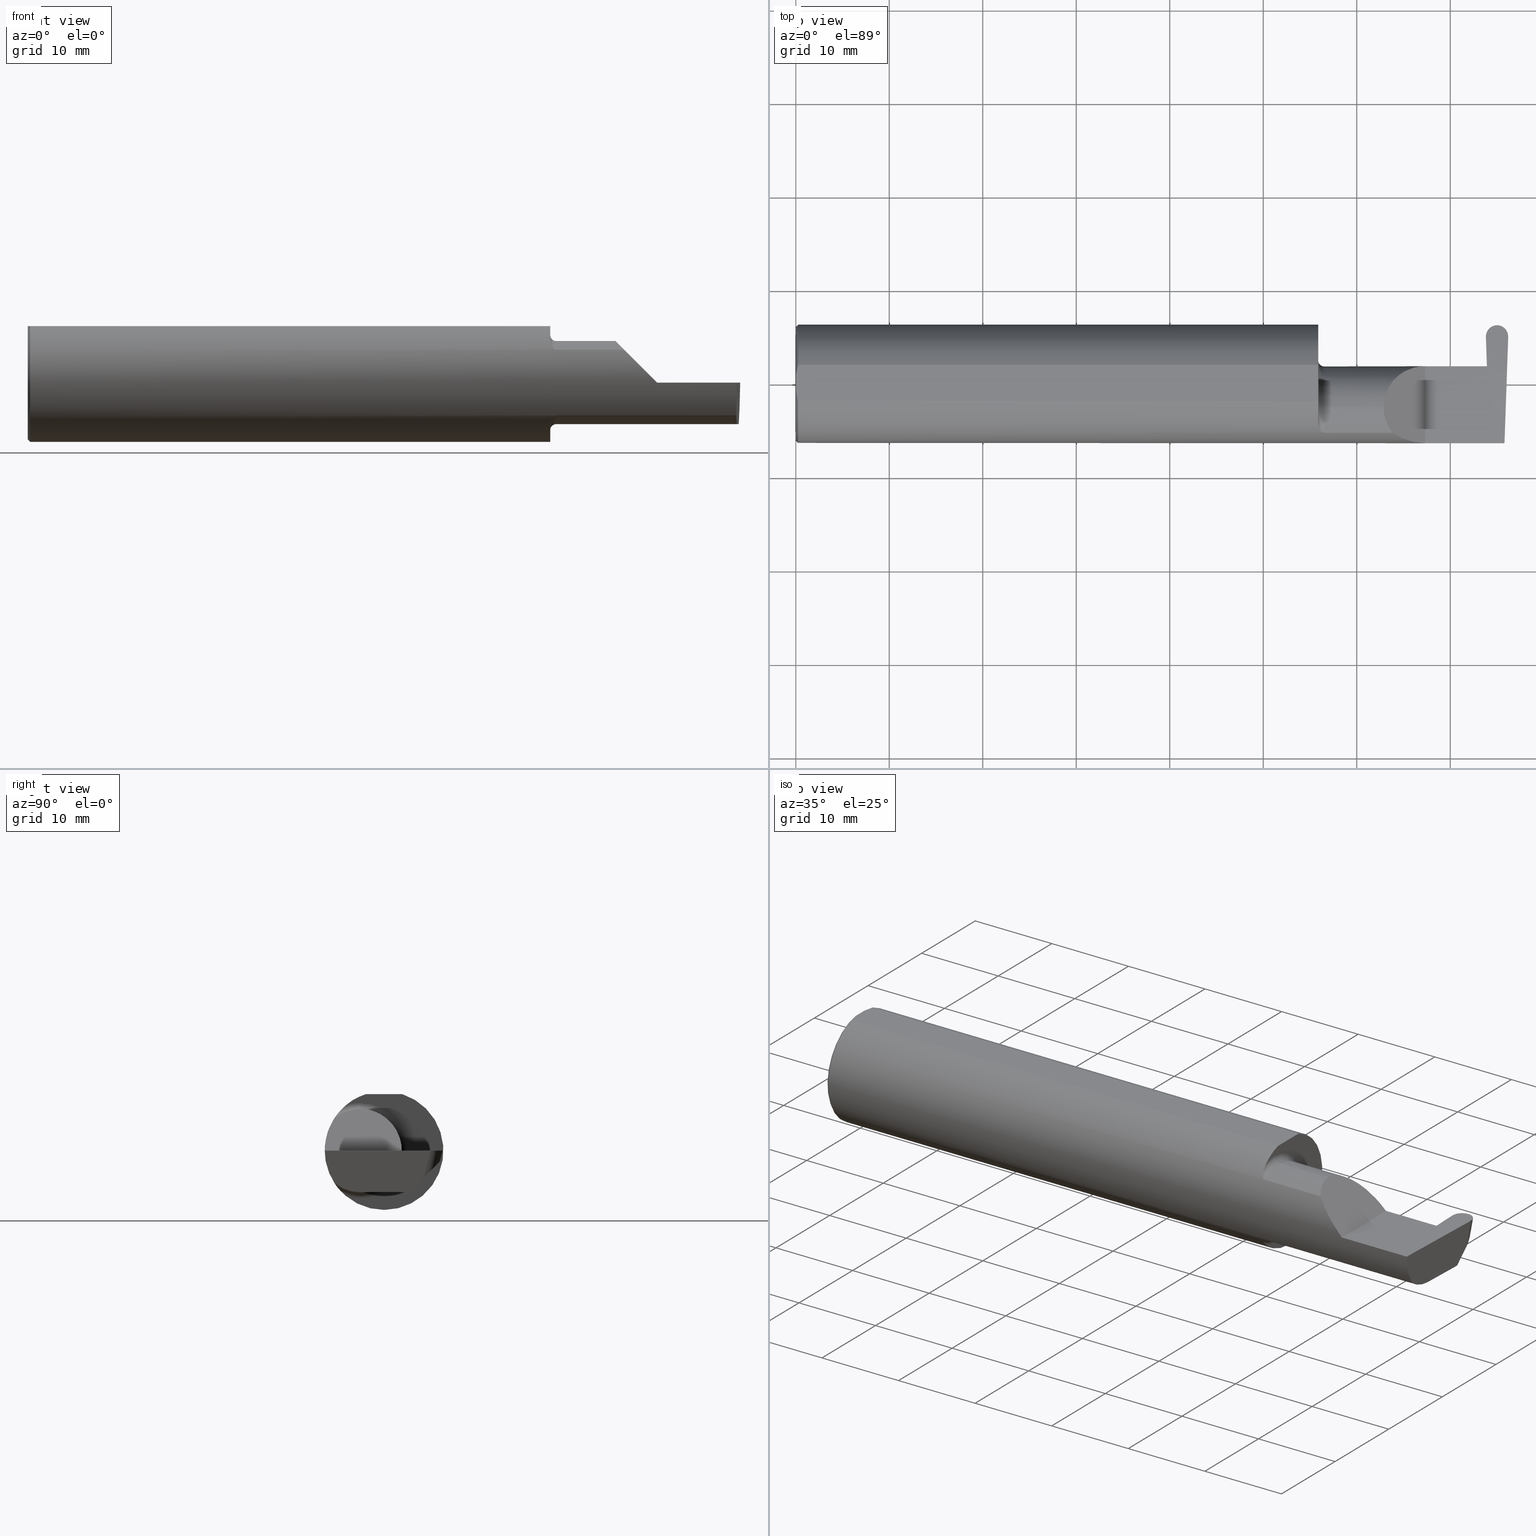
[diagram: canonical four-view strip — front | top / right | iso, engineering-drawing reading convention]
A machine part, canonical four-view strip (front | top / right | iso — engineering-drawing reading convention). The complete STEP part file that produces these views, byte-faithful:
ISO-10303-21;
HEADER;
FILE_DESCRIPTION (( 'STEP AP203' ),
    '1' );
FILE_NAME ('222458-GFR093-12.STEP',
    '2024-06-28T18:31:48',
    ( '' ),
    ( '' ),
    'SwSTEP 2.0',
    'SolidWorks 2024',
    '' );
FILE_SCHEMA (( 'CONFIG_CONTROL_DESIGN' ));
ENDSEC;

DATA;
#1 = DIRECTION ( 'NONE',  ( 0.000000000000000000, 0.000000000000000000, -1.000000000000000000 ) ) ;
#2 = VERTEX_POINT ( 'NONE', #574 ) ;
#3 = ORIENTED_EDGE ( 'NONE', *, *, #642, .F. ) ;
#4 = DIRECTION ( 'NONE',  ( -0.03701744261649734385, 0.7066221440565400025, 0.7066221440565478851 ) ) ;
#5 = VECTOR ( 'NONE', #792, 39.37007874015748143 ) ;
#6 = DIRECTION ( 'NONE',  ( -0.7071067811865439090, 0.000000000000000000, -0.7071067811865511255 ) ) ;
#7 = ORIENTED_EDGE ( 'NONE', *, *, #728, .T. ) ;
#8 = EDGE_CURVE ( 'NONE', #2, #382, #404, .T. ) ;
#9 = LINE ( 'NONE', #187, #268 ) ;
#10 = CARTESIAN_POINT ( 'NONE',  ( 2.650000000000000355, -0.2500000000000000555, 4.286263797015729199E-17 ) ) ;
#11 = EDGE_LOOP ( 'NONE', ( #170, #321, #352, #567 ) ) ;
#12 = DIRECTION ( 'NONE',  ( 1.000000000000000000, 0.000000000000000000, 0.000000000000000000 ) ) ;
#13 = DIRECTION ( 'NONE',  ( 1.000000000000000000, 0.000000000000000000, 0.000000000000000000 ) ) ;
#14 = VERTEX_POINT ( 'NONE', #514 ) ;
#15 = DIRECTION ( 'NONE',  ( 1.000000000000000000, -0.000000000000000000, -0.000000000000000000 ) ) ;
#16 = VECTOR ( 'NONE', #12, 39.37007874015748143 ) ;
#17 = ADVANCED_FACE ( 'NONE', ( #643 ), #29, .F. ) ;
#18 = CARTESIAN_POINT ( 'NONE',  ( 2.200000000000000178, -0.1008500000000001340, 0.000000000000000000 ) ) ;
#19 = ORIENTED_EDGE ( 'NONE', *, *, #457, .F. ) ;
#20 = DIRECTION ( 'NONE',  ( 0.01806679408117471686, 0.000000000000000000, -0.9998367821557817559 ) ) ;
#21 = LINE ( 'NONE', #465, #631 ) ;
#22 = ORIENTED_EDGE ( 'NONE', *, *, #596, .T. ) ;
#23 = APPROVAL_ROLE ( '' ) ;
#24 = FACE_OUTER_BOUND ( 'NONE', #103, .T. ) ;
#25 = DIRECTION ( 'NONE',  ( -0.03489949670249360703, -0.9993908270190959842, 0.000000000000000000 ) ) ;
#26 = ORIENTED_EDGE ( 'NONE', *, *, #204, .T. ) ;
#27 = DATE_AND_TIME ( #473, #578 ) ;
#28 = CARTESIAN_POINT ( 'NONE',  ( 2.993681016992925770, 0.1058243371481696476, -0.1750000000000001277 ) ) ;
#29 = TOROIDAL_SURFACE ( 'NONE', #525, 0.2000000000000000389, 0.02499999999999993894 ) ;
#30 = SECURITY_CLASSIFICATION ( '', '', #550 ) ;
#31 = LINE ( 'NONE', #288, #456 ) ;
#32 = VERTEX_POINT ( 'NONE', #777 ) ;
#33 = EDGE_CURVE ( 'NONE', #68, #663, #766, .T. ) ;
#34 = CARTESIAN_POINT ( 'NONE',  ( 2.225000000000000089, -0.1008500000000001201, 0.000000000000000000 ) ) ;
#35 = CARTESIAN_POINT ( 'NONE',  ( 2.913428848522521708, -0.1008500000000001479, -0.1750000000000000444 ) ) ;
#36 = EDGE_LOOP ( 'NONE', ( #706, #311, #26, #414 ) ) ;
#37 = CARTESIAN_POINT ( 'NONE',  ( 2.914374952050851508, -2.845228123214176286, -0.1794551390957415116 ) ) ;
#38 = EDGE_CURVE ( 'NONE', #541, #289, #373, .T. ) ;
#39 = FACE_OUTER_BOUND ( 'NONE', #306, .T. ) ;
#40 = ORIENTED_EDGE ( 'NONE', *, *, #38, .T. ) ;
#41 = CARTESIAN_POINT ( 'NONE',  ( 2.206159563508734767, -0.1933019864360846496, 0.1584298865564835734 ) ) ;
#42 = EDGE_CURVE ( 'NONE', #382, #497, #43, .T. ) ;
#43 = CIRCLE ( 'NONE', #539, 0.2000000000000000389 ) ;
#44 = VECTOR ( 'NONE', #474, 39.37007874015748854 ) ;
#45 = ORIENTED_EDGE ( 'NONE', *, *, #388, .F. ) ;
#46 = CARTESIAN_POINT ( 'NONE',  ( 2.986463790105515770, -0.1008500000000001340, -0.1750000000000000722 ) ) ;
#47 = ADVANCED_FACE ( 'NONE', ( #789 ), #155, .T. ) ;
#48 = ORIENTED_EDGE ( 'NONE', *, *, #702, .T. ) ;
#49 = CARTESIAN_POINT ( 'NONE',  ( 2.910321839925223752, 0.07404339472834164937, -0.006107411922940873990 ) ) ;
#50 = VERTEX_POINT ( 'NONE', #144 ) ;
#51 = CARTESIAN_POINT ( 'NONE',  ( 2.952921434999999928, 0.2437277550733770448, -0.01277199194210160843 ) ) ;
#52 = CARTESIAN_POINT ( 'NONE',  ( 2.474999999999998757, 0.001662626584708286077, 0.1750000000000000722 ) ) ;
#53 = APPROVAL ( #791, 'UNSPECIFIED' ) ;
#54 = VECTOR ( 'NONE', #653, 39.37007874015748143 ) ;
#55 = CARTESIAN_POINT ( 'NONE',  ( 2.986970135337519761, -0.08635016968773887025, -0.1750000000000000722 ) ) ;
#56 = AXIS2_PLACEMENT_3D ( 'NONE', #374, #558, #368 ) ;
#57 = CARTESIAN_POINT ( 'NONE',  ( 2.202968662030528879, -0.1849684355203375652, 0.1680843977756270868 ) ) ;
#58 = CARTESIAN_POINT ( 'NONE',  ( 2.999923946274115405, 0.1970717818336509553, 0.000000000000000000 ) ) ;
#59 = EDGE_LOOP ( 'NONE', ( #125, #710, #266, #174 ) ) ;
#60 = VERTEX_POINT ( 'NONE', #265 ) ;
#61 =( CONVERSION_BASED_UNIT ( 'INCH', #575 ) LENGTH_UNIT ( ) NAMED_UNIT ( #158 ) );
#62 = DIRECTION ( 'NONE',  ( -1.000000000000000000, -0.000000000000000000, -0.000000000000000000 ) ) ;
#63 = ORIENTED_EDGE ( 'NONE', *, *, #492, .T. ) ;
#64 = MANIFOLD_SOLID_BREP ( 'Radii', #511 ) ;
#65 = CARTESIAN_POINT ( 'NONE',  ( 2.980657859912265728, 0.2340679672696867886, -0.04675636987848154347 ) ) ;
#66 = DIRECTION ( 'NONE',  ( 0.000000000000000000, -0.01745240643728358451, -0.9998476951563912696 ) ) ;
#67 = EDGE_CURVE ( 'NONE', #2, #68, #591, .T. ) ;
#68 = VERTEX_POINT ( 'NONE', #79 ) ;
#69 = AXIS2_PLACEMENT_3D ( 'NONE', #671, #133, #91 ) ;
#70 = CARTESIAN_POINT ( 'NONE',  ( -0.002039370078740339320, 0.2471499999999999808, 0.000000000000000000 ) ) ;
#71 = AXIS2_PLACEMENT_3D ( 'NONE', #757, #519, #572 ) ;
#72 = DIRECTION ( 'NONE',  ( 0.000000000000000000, 0.000000000000000000, 1.000000000000000000 ) ) ;
#73 = ORIENTED_EDGE ( 'NONE', *, *, #721, .T. ) ;
#74 = ADVANCED_FACE ( 'NONE', ( #148 ), #413, .F. ) ;
#75 = DIRECTION ( 'NONE',  ( 0.000000000000000000, 0.9659258262890682012, -0.2588190451025209615 ) ) ;
#76 = DIRECTION ( 'NONE',  ( -1.000000000000000000, -0.000000000000000000, -0.000000000000000000 ) ) ;
#77 = DIRECTION ( 'NONE',  ( -0.01806954526206907413, 0.01744955702544858864, 0.9996844524616943506 ) ) ;
#78 = CARTESIAN_POINT ( 'NONE',  ( 2.200000000000000178, -0.1008500000000001062, -0.2000000000000000389 ) ) ;
#79 = CARTESIAN_POINT ( 'NONE',  ( 2.225000000000000089, -0.1008500000000001201, 0.1750000000000001277 ) ) ;
#80 = EDGE_LOOP ( 'NONE', ( #762, #342, #111 ) ) ;
#81 = DIRECTION ( 'NONE',  ( -0.7071067811865511255, 0.000000000000000000, 0.7071067811865439090 ) ) ;
#82 = CIRCLE ( 'NONE', #555, 0.2000000000000000389 ) ;
#83 = CARTESIAN_POINT ( 'NONE',  ( 2.951281560477486465, 0.1819474783821845298, -0.06174506811695041480 ) ) ;
#84 = EDGE_LOOP ( 'NONE', ( #613, #336, #639, #732 ) ) ;
#85 = APPROVAL_DATE_TIME ( #337, #537 ) ;
#86 = CYLINDRICAL_SURFACE ( 'NONE', #704, 0.1750000000000001277 ) ;
#87 = CARTESIAN_POINT ( 'NONE',  ( 2.487690731615565642, -0.1771157075472507003, 0.1623092683844333250 ) ) ;
#88 = ORIENTED_EDGE ( 'NONE', *, *, #780, .F. ) ;
#89 = COORDINATED_UNIVERSAL_TIME_OFFSET ( 8, 0, .BEHIND. ) ;
#90 = DIRECTION ( 'NONE',  ( -1.000000000000000000, -0.000000000000000000, -0.000000000000000000 ) ) ;
#91 = DIRECTION ( 'NONE',  ( 0.000000000000000000, 0.000000000000000000, 1.000000000000000000 ) ) ;
#92 = ADVANCED_FACE ( 'NONE', ( #402 ), #393, .T. ) ;
#93 = ORIENTED_EDGE ( 'NONE', *, *, #666, .T. ) ;
#94 = LINE ( 'NONE', #281, #622 ) ;
#95 = CIRCLE ( 'NONE', #714, 0.2498499999999999888 ) ;
#96 = AXIS2_PLACEMENT_3D ( 'NONE', #469, #729, #611 ) ;
#97 = CARTESIAN_POINT ( 'NONE',  ( 2.906932232762046375, 0.2056520186124942418, -0.07517231853567442335 ) ) ;
#98 = ORIENTED_EDGE ( 'NONE', *, *, #151, .F. ) ;
#99 = APPROVAL_ROLE ( '' ) ;
#100 = ADVANCED_FACE ( 'NONE', ( #276 ), #207, .F. ) ;
#101 = CARTESIAN_POINT ( 'NONE',  ( 2.984317093749864647, -0.2498499999999999888, 0.000000000000000000 ) ) ;
#102 = DIRECTION ( 'NONE',  ( 0.000000000000000000, 0.000000000000000000, -1.000000000000000000 ) ) ;
#103 = EDGE_LOOP ( 'NONE', ( #106, #636, #190 ) ) ;
#104 = CARTESIAN_POINT ( 'NONE',  ( 2.905871548989777509, 0.1984284167760241857, 0.000000000000000000 ) ) ;
#105 = EDGE_CURVE ( 'NONE', #786, #782, #31, .T. ) ;
#106 = ORIENTED_EDGE ( 'NONE', *, *, #632, .T. ) ;
#107 = CARTESIAN_POINT ( 'NONE',  ( 2.899063548541081836, 0.07404339472834166325, -0.006107411922939685704 ) ) ;
#108 = APPROVAL_PERSON_ORGANIZATION ( #800, #53, #99 ) ;
#109 = VERTEX_POINT ( 'NONE', #597 ) ;
#110 = DIRECTION ( 'NONE',  ( 0.7071067811865486830, 0.000000000000000000, -0.7071067811865462405 ) ) ;
#111 = ORIENTED_EDGE ( 'NONE', *, *, #616, .T. ) ;
#112 = LINE ( 'NONE', #305, #389 ) ;
#113 = CARTESIAN_POINT ( 'NONE',  ( 2.200000000000000178, 0.2498499999999999055, 0.000000000000000000 ) ) ;
#114 = DIRECTION ( 'NONE',  ( 0.000000000000000000, 0.000000000000000000, 1.000000000000000000 ) ) ;
#115 = CARTESIAN_POINT ( 'NONE',  ( 2.225000000000000089, -0.2080850024789287211, -0.1382955322609671911 ) ) ;
#116 = CARTESIAN_POINT ( 'NONE',  ( 3.402190948718818220, -0.1008500000000001340, -0.1750000000000000722 ) ) ;
#117 = AXIS2_PLACEMENT_3D ( 'NONE', #271, #138, #214 ) ;
#118 = VERTEX_POINT ( 'NONE', #736 ) ;
#119 = CARTESIAN_POINT ( 'NONE',  ( 2.913397403057193191, -0.001152430219566465564, -0.1750000000000001832 ) ) ;
#120 = ADVANCED_FACE ( 'NONE', ( #543 ), #601, .T. ) ;
#121 = DIRECTION ( 'NONE',  ( -0.000000000000000000, 1.000000000000000000, -0.000000000000000000 ) ) ;
#122 = VERTEX_POINT ( 'NONE', #219 ) ;
#123 = CARTESIAN_POINT ( 'NONE',  ( 2.910321839925223752, 0.07404339472834164937, -0.006107411922940873990 ) ) ;
#124 = DIRECTION ( 'NONE',  ( -0.03701744261649772549, -0.7066221440565400025, -0.7066221440565478851 ) ) ;
#125 = ORIENTED_EDGE ( 'NONE', *, *, #485, .F. ) ;
#126 = ORIENTED_EDGE ( 'NONE', *, *, #42, .F. ) ;
#127 = CARTESIAN_POINT ( 'NONE',  ( 2.924395885334045708, 0.2471499999999999253, 9.093799426912671490E-18 ) ) ;
#128 = EDGE_CURVE ( 'NONE', #528, #518, #397, .T. ) ;
#129 = ORIENTED_EDGE ( 'NONE', *, *, #249, .F. ) ;
#130 = DIRECTION ( 'NONE',  ( 0.000000000000000000, -0.2588190451025209615, -0.9659258262890682012 ) ) ;
#131 = VECTOR ( 'NONE', #478, 39.37007874015748143 ) ;
#132 = CARTESIAN_POINT ( 'NONE',  ( 0.000000000000000000, 0.000000000000000000, 0.000000000000000000 ) ) ;
#133 = DIRECTION ( 'NONE',  ( -1.000000000000000000, -0.000000000000000000, -0.000000000000000000 ) ) ;
#134 = DIRECTION ( 'NONE',  ( -1.000000000000000000, -0.000000000000000000, -0.000000000000000000 ) ) ;
#135 = DIRECTION ( 'NONE',  ( -1.000000000000000000, -0.000000000000000000, -0.000000000000000000 ) ) ;
#136 = ORIENTED_EDGE ( 'NONE', *, *, #105, .T. ) ;
#137 = CARTESIAN_POINT ( 'NONE',  ( 0.000000000000000000, 0.03090954545120574992, 0.2378499999999998671 ) ) ;
#138 = DIRECTION ( 'NONE',  ( 1.000000000000000000, 0.000000000000000000, 0.000000000000000000 ) ) ;
#139 = ORIENTED_EDGE ( 'NONE', *, *, #776, .F. ) ;
#140 = PERSON_AND_ORGANIZATION_ROLE ( 'creator' ) ;
#141 = CIRCLE ( 'NONE', #334, 0.1750000000000001277 ) ;
#142 = LINE ( 'NONE', #665, #5 ) ;
#143 = AXIS2_PLACEMENT_3D ( 'NONE', #34, #788, #206 ) ;
#144 = CARTESIAN_POINT ( 'NONE',  ( 2.905918923725884451, 0.1970717818336510108, 0.000000000000000000 ) ) ;
#145 = ORIENTED_EDGE ( 'NONE', *, *, #479, .F. ) ;
#146 = PLANE ( 'NONE',  #488 ) ;
#147 = EDGE_CURVE ( 'NONE', #579, #752, #161, .T. ) ;
#148 = FACE_OUTER_BOUND ( 'NONE', #453, .T. ) ;
#149 = ORIENTED_EDGE ( 'NONE', *, *, #177, .F. ) ;
#150 = CARTESIAN_POINT ( 'NONE',  ( 0.000000000000000000, 0.2498499999999998500, 0.2378499999999998671 ) ) ;
#151 = EDGE_CURVE ( 'NONE', #349, #541, #21, .T. ) ;
#152 = ORIENTED_EDGE ( 'NONE', *, *, #485, .T. ) ;
#153 = DATE_TIME_ROLE ( 'classification_date' ) ;
#154 = DIRECTION ( 'NONE',  ( -1.000000000000000000, -0.000000000000000000, -0.000000000000000000 ) ) ;
#155 = CONICAL_SURFACE ( 'NONE', #117, 0.2398500000000001742, 0.7853981633974466137 ) ;
#156 = AXIS2_PLACEMENT_3D ( 'NONE', #753, #431, #238 ) ;
#157 = CARTESIAN_POINT ( 'NONE',  ( 2.952921434999999928, 0.2348123830215256280, -0.04601195412664269707 ) ) ;
#158 = DIMENSIONAL_EXPONENTS ( 1.000000000000000000, 0.000000000000000000, 0.000000000000000000, 0.000000000000000000, 0.000000000000000000, 0.000000000000000000, 0.000000000000000000 ) ;
#159 = ORIENTED_EDGE ( 'NONE', *, *, #388, .T. ) ;
#160 = ADVANCED_FACE ( 'NONE', ( #718 ), #731, .F. ) ;
#161 =( BOUNDED_CURVE ( )  B_SPLINE_CURVE ( 3, ( #203, #87, #333, #534 ),
 .UNSPECIFIED., .F., .T. ) 
 B_SPLINE_CURVE_WITH_KNOTS ( ( 4, 4 ),
 ( 5.623622464215683792, 6.283185307179586232 ),
 .UNSPECIFIED. ) 
 CURVE ( )  GEOMETRIC_REPRESENTATION_ITEM ( )  RATIONAL_B_SPLINE_CURVE ( ( 1.000000000000000000, 0.9640754331822833922, 0.9640754331822833922, 1.000000000000000000 ) ) 
 REPRESENTATION_ITEM ( '' )  );
#162 = CARTESIAN_POINT ( 'NONE',  ( 2.999923946274115405, 0.1970717818336509553, 0.000000000000000000 ) ) ;
#163 = CC_DESIGN_PERSON_AND_ORGANIZATION_ASSIGNMENT ( #280, #742, ( #688 ) ) ;
#164 = EDGE_LOOP ( 'NONE', ( #522, #765, #356, #532 ) ) ;
#165 = DIRECTION ( 'NONE',  ( 1.000000000000000000, -0.000000000000000000, -0.000000000000000000 ) ) ;
#166 = ORIENTED_EDGE ( 'NONE', *, *, #750, .F. ) ;
#167 = CARTESIAN_POINT ( 'NONE',  ( 2.552984868485331571, -0.2355204011147991605, 0.09701513151466779894 ) ) ;
#168 = VECTOR ( 'NONE', #25, 39.37007874015748143 ) ;
#169 = AXIS2_PLACEMENT_3D ( 'NONE', #391, #649, #75 ) ;
#170 = ORIENTED_EDGE ( 'NONE', *, *, #67, .F. ) ;
#171 = CARTESIAN_POINT ( 'NONE',  ( 2.952921434999999928, 0.2377865837197746524, -0.03493385853676862773 ) ) ;
#172 = DIRECTION ( 'NONE',  ( 0.000000000000000000, 0.000000000000000000, 1.000000000000000000 ) ) ;
#173 = EDGE_CURVE ( 'NONE', #598, #786, #662, .T. ) ;
#174 = ORIENTED_EDGE ( 'NONE', *, *, #33, .T. ) ;
#175 = CARTESIAN_POINT ( 'NONE',  ( 2.983360130692194634, -0.2080850024789288044, -0.1382955322609671633 ) ) ;
#176 = CARTESIAN_POINT ( 'NONE',  ( 2.981446984665954592, 0.2471500000000002306, 5.045648196544972649E-18 ) ) ;
#177 = EDGE_CURVE ( 'NONE', #205, #424, #329, .T. ) ;
#178 = ORIENTED_EDGE ( 'NONE', *, *, #147, .T. ) ;
#179 = CARTESIAN_POINT ( 'NONE',  ( 2.225000000000000089, -0.1008500000000001062, -0.1750000000000001277 ) ) ;
#180 = CARTESIAN_POINT ( 'NONE',  ( 2.474999999999998757, -0.1008500000000001340, 0.1750000000000001277 ) ) ;
#181 = AXIS2_PLACEMENT_3D ( 'NONE', #444, #573, #1 ) ;
#182 = ORIENTED_EDGE ( 'NONE', *, *, #429, .F. ) ;
#183 = AXIS2_PLACEMENT_3D ( 'NONE', #670, #615, #533 ) ;
#184 = ADVANCED_FACE ( 'NONE', ( #199 ), #654, .T. ) ;
#185 = CARTESIAN_POINT ( 'NONE',  ( 2.200000000000000178, -0.1616050818046601834, -0.1905487340154982112 ) ) ;
#186 = VERTEX_POINT ( 'NONE', #565 ) ;
#187 = CARTESIAN_POINT ( 'NONE',  ( 2.901419954205615603, 0.3108753354292448923, 0.03005099828107738597 ) ) ;
#188 = EDGE_CURVE ( 'NONE', #663, #618, #141, .T. ) ;
#189 = CARTESIAN_POINT ( 'NONE',  ( 2.225000000000000089, -0.2080850024789287211, -0.1382955322609671911 ) ) ;
#190 = ORIENTED_EDGE ( 'NONE', *, *, #740, .F. ) ;
#191 = LINE ( 'NONE', #454, #16 ) ;
#192 = LINE ( 'NONE', #658, #54 ) ;
#193 = CARTESIAN_POINT ( 'NONE',  ( 2.225000000000000089, -0.1008500000000001201, 0.000000000000000000 ) ) ;
#194 = ADVANCED_BREP_SHAPE_REPRESENTATION ( '222458-GFR093-12', ( #64, #197 ), #255 ) ;
#195 = AXIS2_PLACEMENT_3D ( 'NONE', #116, #230, #548 ) ;
#196 = LINE ( 'NONE', #379, #540 ) ;
#197 = AXIS2_PLACEMENT_3D ( 'NONE', #447, #516, #770 ) ;
#198 = CARTESIAN_POINT ( 'NONE',  ( 2.217611663768900510, -0.2061921161193828456, -0.1411075319999381128 ) ) ;
#199 = FACE_OUTER_BOUND ( 'NONE', #491, .T. ) ;
#200 = ORIENTED_EDGE ( 'NONE', *, *, #235, .F. ) ;
#201 =( LENGTH_UNIT ( ) NAMED_UNIT ( * ) SI_UNIT ( $, .METRE. ) );
#202 = DIRECTION ( 'NONE',  ( 0.02590004391968220646, 0.2587322210431824421, 0.9656017944882974158 ) ) ;
#203 = CARTESIAN_POINT ( 'NONE',  ( 2.511704467739031887, -0.2080850024789287211, 0.1382955322609671911 ) ) ;
#204 = EDGE_CURVE ( 'NONE', #367, #446, #695, .T. ) ;
#205 = VERTEX_POINT ( 'NONE', #504 ) ;
#206 = DIRECTION ( 'NONE',  ( 0.000000000000000000, 0.000000000000000000, 1.000000000000000000 ) ) ;
#207 = PLANE ( 'NONE',  #210 ) ;
#208 = EDGE_LOOP ( 'NONE', ( #297, #22, #594, #486, #325, #390 ) ) ;
#209 = PERSON_AND_ORGANIZATION ( #505, #365 ) ;
#210 = AXIS2_PLACEMENT_3D ( 'NONE', #470, #606, #587 ) ;
#211 = ADVANCED_FACE ( 'NONE', ( #484 ), #681, .T. ) ;
#212 = CC_DESIGN_APPROVAL ( #53, ( #403 ) ) ;
#213 = DIRECTION ( 'NONE',  ( -0.03489949670249305885, 0.9993908270190959842, -0.000000000000000000 ) ) ;
#214 = DIRECTION ( 'NONE',  ( 0.000000000000000000, 0.000000000000000000, -1.000000000000000000 ) ) ;
#215 = EDGE_LOOP ( 'NONE', ( #182, #88, #726, #149, #129 ) ) ;
#216 = PERSON_AND_ORGANIZATION_ROLE ( 'classification_officer' ) ;
#217 = CARTESIAN_POINT ( 'NONE',  ( 2.200000000000000178, -0.1616050818046601834, -0.1905487340154982112 ) ) ;
#218 = EDGE_CURVE ( 'NONE', #741, #518, #566, .T. ) ;
#219 = CARTESIAN_POINT ( 'NONE',  ( 2.650000000000000355, 0.07414999999999995206, 9.797174393178813824E-17 ) ) ;
#220 = ORIENTED_EDGE ( 'NONE', *, *, #462, .T. ) ;
#221 = COORDINATED_UNIVERSAL_TIME_OFFSET ( 8, 0, .BEHIND. ) ;
#222 = LINE ( 'NONE', #295, #131 ) ;
#223 = CARTESIAN_POINT ( 'NONE',  ( 2.984317093749864647, -0.2498499999999999888, 0.000000000000000000 ) ) ;
#224 = ORIENTED_EDGE ( 'NONE', *, *, #452, .T. ) ;
#225 = CALENDAR_DATE ( 2024, 28, 6 ) ;
#226 = DIRECTION ( 'NONE',  ( -1.000000000000000000, -0.000000000000000000, -0.000000000000000000 ) ) ;
#227 =( BOUNDED_CURVE ( )  B_SPLINE_CURVE ( 3, ( #693, #234, #167, #698 ),
 .UNSPECIFIED., .F., .F. ) 
 B_SPLINE_CURVE_WITH_KNOTS ( ( 4, 4 ),
 ( 4.712388980384689674, 5.298966915116348986 ),
 .UNSPECIFIED. ) 
 CURVE ( )  GEOMETRIC_REPRESENTATION_ITEM ( )  RATIONAL_B_SPLINE_CURVE ( ( 1.000000000000000000, 0.9715321379117536349, 0.9715321379117536349, 1.000000000000000000 ) ) 
 REPRESENTATION_ITEM ( '' )  );
#228 = AXIS2_PLACEMENT_3D ( 'NONE', #113, #569, #102 ) ;
#229 = VECTOR ( 'NONE', #814, 39.37007874015748143 ) ;
#230 = DIRECTION ( 'NONE',  ( -0.000000000000000000, 1.223176342469858371E-16, 1.000000000000000000 ) ) ;
#231 = ORIENTED_EDGE ( 'NONE', *, *, #580, .F. ) ;
#232 = CARTESIAN_POINT ( 'NONE',  ( 2.565421434999999750, -0.2080850024789288044, -0.1382955322609671633 ) ) ;
#233 = ORIENTED_EDGE ( 'NONE', *, *, #304, .F. ) ;
#234 = CARTESIAN_POINT ( 'NONE',  ( 2.600434159100402987, -0.2498499999999999610, 0.04956584089959713973 ) ) ;
#235 = EDGE_CURVE ( 'NONE', #186, #122, #480, .T. ) ;
#236 = CC_DESIGN_PERSON_AND_ORGANIZATION_ASSIGNMENT ( #804, #216, ( #30 ) ) ;
#237 = ORIENTED_EDGE ( 'NONE', *, *, #323, .T. ) ;
#238 = DIRECTION ( 'NONE',  ( 0.000000000000000000, 0.000000000000000000, -1.000000000000000000 ) ) ;
#239 = EDGE_CURVE ( 'NONE', #497, #118, #254, .T. ) ;
#240 = VECTOR ( 'NONE', #781, 39.37007874015748854 ) ;
#241 = APPROVAL_PERSON_ORGANIZATION ( #209, #537, #23 ) ;
#242 = ORIENTED_EDGE ( 'NONE', *, *, #660, .T. ) ;
#243 = CARTESIAN_POINT ( 'NONE',  ( 2.225000000000000089, -0.2080850024789288044, 0.1382955322609671356 ) ) ;
#244 = CARTESIAN_POINT ( 'NONE',  ( 0.009999999999999856226, 0.07650098038587520299, 0.2378499999999998671 ) ) ;
#245 = EDGE_CURVE ( 'NONE', #466, #316, #95, .T. ) ;
#246 = ORIENTED_EDGE ( 'NONE', *, *, #304, .T. ) ;
#247 = CARTESIAN_POINT ( 'NONE',  ( 2.899099083631634599, 0.07407892981889442618, -0.004071607948626453088 ) ) ;
#248 = CARTESIAN_POINT ( 'NONE',  ( 3.000942059314616550, 0.2262267247321108621, 2.658190119782672195E-18 ) ) ;
#249 = EDGE_CURVE ( 'NONE', #528, #205, #600, .T. ) ;
#250 = DIRECTION ( 'NONE',  ( 0.000000000000000000, 0.000000000000000000, 1.000000000000000000 ) ) ;
#251 = CARTESIAN_POINT ( 'NONE',  ( 2.474999999999998757, -0.1008500000000001340, 0.1750000000000001277 ) ) ;
#252 = PRODUCT_RELATED_PRODUCT_CATEGORY ( 'detail', '', ( #432 ) ) ;
#253 = CARTESIAN_POINT ( 'NONE',  ( 2.225000000000000089, -0.1008500000000001201, 0.000000000000000000 ) ) ;
#254 = CIRCLE ( 'NONE', #318, 0.2498499999999999888 ) ;
#255 =( GEOMETRIC_REPRESENTATION_CONTEXT ( 3 ) GLOBAL_UNCERTAINTY_ASSIGNED_CONTEXT ( ( #412 ) ) GLOBAL_UNIT_ASSIGNED_CONTEXT ( ( #61, #327, #386 ) ) REPRESENTATION_CONTEXT ( 'NONE', 'WORKASPACE' ) );
#256 = DIRECTION ( 'NONE',  ( -1.000000000000000000, -0.000000000000000000, -0.000000000000000000 ) ) ;
#257 = ORIENTED_EDGE ( 'NONE', *, *, #642, .T. ) ;
#258 = CYLINDRICAL_SURFACE ( 'NONE', #169, 0.04700000000000001399 ) ;
#259 = DIRECTION ( 'NONE',  ( 0.000000000000000000, 0.000000000000000000, -1.000000000000000000 ) ) ;
#260 = ORIENTED_EDGE ( 'NONE', *, *, #625, .F. ) ;
#261 = FACE_OUTER_BOUND ( 'NONE', #773, .T. ) ;
#262 = CARTESIAN_POINT ( 'NONE',  ( 2.200000000000000178, -0.1716188362992553118, -0.1820560320165482693 ) ) ;
#263 = ORIENTED_EDGE ( 'NONE', *, *, #515, .F. ) ;
#264 = LINE ( 'NONE', #269, #754 ) ;
#265 = CARTESIAN_POINT ( 'NONE',  ( 0.000000000000000000, 0.000000000000000000, -0.2398500000000001742 ) ) ;
#266 = ORIENTED_EDGE ( 'NONE', *, *, #67, .T. ) ;
#267 = APPLICATION_PROTOCOL_DEFINITION ( 'international standard', 'config_control_design', 1994, #332 ) ;
#268 = VECTOR ( 'NONE', #4, 39.37007874015748143 ) ;
#269 = CARTESIAN_POINT ( 'NONE',  ( 2.996324603059298930, 0.1562874789046420076, -0.1245368582435272126 ) ) ;
#270 = ADVANCED_FACE ( 'NONE', ( #39 ), #441, .T. ) ;
#271 = CARTESIAN_POINT ( 'NONE',  ( 0.000000000000000000, 0.000000000000000000, 0.000000000000000000 ) ) ;
#272 = EDGE_CURVE ( 'NONE', #752, #122, #748, .T. ) ;
#273 = ORIENTED_EDGE ( 'NONE', *, *, #564, .F. ) ;
#274 = COORDINATED_UNIVERSAL_TIME_OFFSET ( 8, 0, .BEHIND. ) ;
#275 = CARTESIAN_POINT ( 'NONE',  ( 2.899170153812740125, 0.07414999999999995206, 0.000000000000000000 ) ) ;
#276 = FACE_OUTER_BOUND ( 'NONE', #621, .T. ) ;
#277 = ADVANCED_FACE ( 'NONE', ( #675 ), #308, .F. ) ;
#278 =( BOUNDED_CURVE ( )  B_SPLINE_CURVE ( 3, ( #51, #507, #171, #560 ),
 .UNSPECIFIED., .F., .T. ) 
 B_SPLINE_CURVE_WITH_KNOTS ( ( 4, 4 ),
 ( 4.712388980384682569, 4.731354904357337077 ),
 .UNSPECIFIED. ) 
 CURVE ( )  GEOMETRIC_REPRESENTATION_ITEM ( )  RATIONAL_B_SPLINE_CURVE ( ( 1.000000000000000000, 0.9999700247019541743, 0.9999700247019541743, 1.000000000000000000 ) ) 
 REPRESENTATION_ITEM ( '' )  );
#279 = EDGE_LOOP ( 'NONE', ( #126, #152, #678, #224 ) ) ;
#280 = PERSON_AND_ORGANIZATION ( #505, #365 ) ;
#281 = CARTESIAN_POINT ( 'NONE',  ( 2.950596861561887163, 0.2669494164144191606, 0.07389242801882554834 ) ) ;
#282 = VERTEX_POINT ( 'NONE', #35 ) ;
#283 = SHAPE_DEFINITION_REPRESENTATION ( #363, #194 ) ;
#284 = ADVANCED_FACE ( 'NONE', ( #375 ), #490, .F. ) ;
#285 = LOCAL_TIME ( 11, 31, 48.00000000000000000, #221 ) ;
#286 = DIRECTION ( 'NONE',  ( -0.000000000000000000, 1.000000000000000000, -0.000000000000000000 ) ) ;
#287 = DESIGN_CONTEXT ( 'detailed design', #508, 'design' ) ;
#288 = CARTESIAN_POINT ( 'NONE',  ( 2.200000000000000178, 0.07404339472834170488, -0.006107411922938294456 ) ) ;
#289 = VERTEX_POINT ( 'NONE', #739 ) ;
#290 = COORDINATED_UNIVERSAL_TIME_OFFSET ( 8, 0, .BEHIND. ) ;
#291 = LINE ( 'NONE', #104, #677 ) ;
#292 = CARTESIAN_POINT ( 'NONE',  ( 2.925185010087734128, 0.2340679672696867886, -0.04675636987848157816 ) ) ;
#293 = ORIENTED_EDGE ( 'NONE', *, *, #785, .F. ) ;
#294 = DATE_AND_TIME ( #679, #310 ) ;
#295 = CARTESIAN_POINT ( 'NONE',  ( 0.000000000000000000, 0.07650098038587520299, 0.2378499999999998671 ) ) ;
#296 = DIRECTION ( 'NONE',  ( 0.000000000000000000, 0.000000000000000000, 1.000000000000000000 ) ) ;
#297 = ORIENTED_EDGE ( 'NONE', *, *, #806, .T. ) ;
#298 = LINE ( 'NONE', #232, #229 ) ;
#299 = AXIS2_PLACEMENT_3D ( 'NONE', #715, #76, #72 ) ;
#300 = VECTOR ( 'NONE', #796, 39.37007874015748143 ) ;
#301 = ORIENTED_EDGE ( 'NONE', *, *, #369, .F. ) ;
#302 = CARTESIAN_POINT ( 'NONE',  ( 2.208182335268384477, -0.1972192205116128916, 0.1535061413537213149 ) ) ;
#303 = ORIENTED_EDGE ( 'NONE', *, *, #400, .T. ) ;
#304 = EDGE_CURVE ( 'NONE', #692, #472, #395, .T. ) ;
#305 = CARTESIAN_POINT ( 'NONE',  ( -0.002039370078740339320, 0.2471499999999999808, 0.000000000000000000 ) ) ;
#306 = EDGE_LOOP ( 'NONE', ( #810, #410, #627, #73, #672, #700, #320, #749, #419, #816, #263, #501, #439 ) ) ;
#307 = CARTESIAN_POINT ( 'NONE',  ( 2.984022185481226774, -0.1771157075472506726, -0.1623092683844333528 ) ) ;
#308 = PLANE ( 'NONE',  #195 ) ;
#309 = AXIS2_PLACEMENT_3D ( 'NONE', #132, #328, #324 ) ;
#310 = LOCAL_TIME ( 11, 31, 48.00000000000000000, #290 ) ;
#311 = ORIENTED_EDGE ( 'NONE', *, *, #520, .F. ) ;
#312 = LINE ( 'NONE', #437, #421 ) ;
#313 = CARTESIAN_POINT ( 'NONE',  ( 2.200000000000000178, 0.000000000000000000, 0.000000000000000000 ) ) ;
#314 = DIRECTION ( 'NONE',  ( -0.03489949670249360009, -0.9993908270190959842, 1.222058880457094394E-16 ) ) ;
#315 = CARTESIAN_POINT ( 'NONE',  ( 2.650000000000000355, 0.07414999999999995206, 9.797174393178813824E-17 ) ) ;
#316 = VERTEX_POINT ( 'NONE', #423 ) ;
#317 = CARTESIAN_POINT ( 'NONE',  ( 2.206147634408387681, -0.1932733126899457976, -0.1584637047788199637 ) ) ;
#318 = AXIS2_PLACEMENT_3D ( 'NONE', #313, #758, #351 ) ;
#319 = AXIS2_PLACEMENT_3D ( 'NONE', #590, #521, #66 ) ;
#320 = ORIENTED_EDGE ( 'NONE', *, *, #728, .F. ) ;
#321 = ORIENTED_EDGE ( 'NONE', *, *, #492, .F. ) ;
#322 = LINE ( 'NONE', #640, #338 ) ;
#323 = EDGE_CURVE ( 'NONE', #559, #535, #418, .T. ) ;
#324 = DIRECTION ( 'NONE',  ( 0.000000000000000000, 0.000000000000000000, -1.000000000000000000 ) ) ;
#325 = ORIENTED_EDGE ( 'NONE', *, *, #570, .F. ) ;
#326 = ADVANCED_FACE ( 'NONE', ( #384 ), #783, .F. ) ;
#327 =( NAMED_UNIT ( * ) PLANE_ANGLE_UNIT ( ) SI_UNIT ( $, .RADIAN. ) );
#328 = DIRECTION ( 'NONE',  ( 1.000000000000000000, 0.000000000000000000, 0.000000000000000000 ) ) ;
#329 = LINE ( 'NONE', #527, #240 ) ;
#330 = EDGE_CURVE ( 'NONE', #598, #349, #455, .T. ) ;
#331 = CARTESIAN_POINT ( 'NONE',  ( 2.952578855735824348, 0.2471499999999999808, 0.000000000000000000 ) ) ;
#332 = APPLICATION_CONTEXT ( 'configuration controlled 3d designs of mechanical parts and assemblies' ) ;
#333 = CARTESIAN_POINT ( 'NONE',  ( 2.474999999999998757, -0.1400387324517230747, 0.1750000000000001277 ) ) ;
#334 = AXIS2_PLACEMENT_3D ( 'NONE', #761, #62, #172 ) ;
#335 =( BOUNDED_CURVE ( )  B_SPLINE_CURVE ( 3, ( #644, #65, #396, #450 ),
 .UNSPECIFIED., .F., .T. ) 
 B_SPLINE_CURVE_WITH_KNOTS ( ( 4, 4 ),
 ( 3.145606294630826749, 4.726629019293366873 ),
 .UNSPECIFIED. ) 
 CURVE ( )  GEOMETRIC_REPRESENTATION_ITEM ( )  RATIONAL_B_SPLINE_CURVE ( ( 1.000000000000000000, 0.8023213171585998893, 0.8023213171585998893, 1.000000000000000000 ) ) 
 REPRESENTATION_ITEM ( '' )  );
#336 = ORIENTED_EDGE ( 'NONE', *, *, #721, .F. ) ;
#337 = DATE_AND_TIME ( #656, #716 ) ;
#338 = VECTOR ( 'NONE', #523, 39.37007874015748143 ) ;
#339 = CARTESIAN_POINT ( 'NONE',  ( 0.009999999999999856226, 0.000000000000000000, 0.000000000000000000 ) ) ;
#340 = EDGE_CURVE ( 'NONE', #14, #68, #433, .T. ) ;
#341 = DIRECTION ( 'NONE',  ( -0.03489949670249360009, -0.9993908270190959842, 0.000000000000000000 ) ) ;
#342 = ORIENTED_EDGE ( 'NONE', *, *, #520, .T. ) ;
#343 = DIRECTION ( 'NONE',  ( 0.000000000000000000, 0.000000000000000000, 1.000000000000000000 ) ) ;
#344 = CARTESIAN_POINT ( 'NONE',  ( -0.002039370078740339320, 0.2348243371481683328, -0.04599999999999999922 ) ) ;
#345 = ORIENTED_EDGE ( 'NONE', *, *, #596, .F. ) ;
#346 = APPROVAL_STATUS ( 'not_yet_approved' ) ;
#347 = CARTESIAN_POINT ( 'NONE',  ( 2.952921434999999928, 0.2348123830215256280, -0.04601195412664269707 ) ) ;
#348 = DIRECTION ( 'NONE',  ( 0.000000000000000000, 0.000000000000000000, 1.000000000000000000 ) ) ;
#349 = VERTEX_POINT ( 'NONE', #586 ) ;
#350 = CC_DESIGN_APPROVAL ( #537, ( #30 ) ) ;
#351 = DIRECTION ( 'NONE',  ( 0.000000000000000000, 0.000000000000000000, -1.000000000000000000 ) ) ;
#352 = ORIENTED_EDGE ( 'NONE', *, *, #691, .T. ) ;
#353 = PERSON_AND_ORGANIZATION_ROLE ( 'creator' ) ;
#354 = CARTESIAN_POINT ( 'NONE',  ( 2.910211446934811264, 0.07414999999999995206, 0.000000000000000000 ) ) ;
#355 = CARTESIAN_POINT ( 'NONE',  ( 2.983451391416268805, -0.2498499999999999610, -0.04956584089959722994 ) ) ;
#356 = ORIENTED_EDGE ( 'NONE', *, *, #245, .F. ) ;
#357 = B_SPLINE_CURVE_WITH_KNOTS ( 'NONE', 3,
 ( #630, #371, #619, #495, #57, #41, #302, #503, #686, #703, #556, #493, #690, #243 ),
 .UNSPECIFIED., .F., .F.,
 ( 4, 2, 2, 2, 2, 2, 4 ),
 ( 0.0003834465838148119385, 0.0008781406165086550180, 0.001372834649202498043, 0.001867528681896341069, 0.002114875698243267026, 0.002238549206416738137, 0.002362222714590209247 ),
 .UNSPECIFIED. ) ;
#358 = CARTESIAN_POINT ( 'NONE',  ( 2.225000000000000089, -0.1008500000000001062, -0.2000000000000000389 ) ) ;
#359 = B_SPLINE_CURVE_WITH_KNOTS ( 'NONE', 3,
 ( #189, #650, #524, #512, #198, #768, #719, #387, #317, #646, #262, #185 ),
 .UNSPECIFIED., .F., .F.,
 ( 4, 2, 2, 2, 2, 4 ),
 ( 1.964491429042083594E-07, 0.0001260981470478283659, 0.0002519998449527525520, 0.0005038032407626148561, 0.001007410032382339464, 0.002014623615621791933 ),
 .UNSPECIFIED. ) ;
#360 = ORIENTED_EDGE ( 'NONE', *, *, #272, .T. ) ;
#361 = APPROVAL ( #614, 'UNSPECIFIED' ) ;
#362 = CARTESIAN_POINT ( 'NONE',  ( 2.985095289412896147, -0.1400387324517230192, -0.1750000000000001554 ) ) ;
#363 = PRODUCT_DEFINITION_SHAPE ( 'NONE', 'NONE',  #403 ) ;
#364 = VECTOR ( 'NONE', #15, 39.37007874015748143 ) ;
#365 = ORGANIZATION ( 'UNSPECIFIED', 'UNSPECIFIED', '' ) ;
#366 = ADVANCED_FACE ( 'NONE', ( #711 ), #676, .T. ) ;
#367 = VERTEX_POINT ( 'NONE', #137 ) ;
#368 = DIRECTION ( 'NONE',  ( -1.000000000000000000, 0.000000000000000000, 1.224646799147351975E-16 ) ) ;
#369 = EDGE_CURVE ( 'NONE', #32, #541, #264, .T. ) ;
#370 = ORIENTED_EDGE ( 'NONE', *, *, #660, .F. ) ;
#371 = CARTESIAN_POINT ( 'NONE',  ( 2.199999999999999734, -0.1665641037263007329, 0.1863429692936363902 ) ) ;
#372 = CARTESIAN_POINT ( 'NONE',  ( 2.983360130692194634, -0.2080850024789288044, -0.1382955322609671633 ) ) ;
#373 = LINE ( 'NONE', #55, #376 ) ;
#374 = CARTESIAN_POINT ( 'NONE',  ( 3.000000000000000444, -0.2500000000000000555, 0.000000000000000000 ) ) ;
#375 = FACE_OUTER_BOUND ( 'NONE', #80, .T. ) ;
#376 = VECTOR ( 'NONE', #314, 39.37007874015748143 ) ;
#377 = AXIS2_PLACEMENT_3D ( 'NONE', #70, #510, #130 ) ;
#378 = DIRECTION ( 'NONE',  ( -1.000000000000000000, -0.000000000000000000, -0.000000000000000000 ) ) ;
#379 = CARTESIAN_POINT ( 'NONE',  ( 2.913428897145816432, -0.1010041597270659730, -0.1750000000000000722 ) ) ;
#380 = DIRECTION ( 'NONE',  ( -1.000000000000000000, -0.000000000000000000, -0.000000000000000000 ) ) ;
#381 = CARTESIAN_POINT ( 'NONE',  ( 2.200000000000000178, -0.1008500000000001340, 0.000000000000000000 ) ) ;
#382 = VERTEX_POINT ( 'NONE', #78 ) ;
#383 = LINE ( 'NONE', #774, #633 ) ;
#384 = FACE_OUTER_BOUND ( 'NONE', #84, .T. ) ;
#385 = ORIENTED_EDGE ( 'NONE', *, *, #42, .T. ) ;
#386 =( NAMED_UNIT ( * ) SI_UNIT ( $, .STERADIAN. ) SOLID_ANGLE_UNIT ( ) );
#387 = CARTESIAN_POINT ( 'NONE',  ( 2.208176740666624838, -0.1972027065478071106, -0.1535263573771917245 ) ) ;
#388 = EDGE_CURVE ( 'NONE', #282, #663, #192, .T. ) ;
#389 = VECTOR ( 'NONE', #165, 39.37007874015748143 ) ;
#390 = ORIENTED_EDGE ( 'NONE', *, *, #496, .F. ) ;
#391 = CARTESIAN_POINT ( 'NONE',  ( 2.952874015799872964, 0.1988029421707689093, 0.001160379127183837908 ) ) ;
#392 = DIRECTION ( 'NONE',  ( 0.000000000000000000, 0.000000000000000000, 1.000000000000000000 ) ) ;
#393 = CYLINDRICAL_SURFACE ( 'NONE', #69, 0.1750000000000001277 ) ;
#394 = EDGE_CURVE ( 'NONE', #316, #446, #779, .T. ) ;
#395 =( BOUNDED_CURVE ( )  B_SPLINE_CURVE ( 3, ( #802, #97, #292, #157 ),
 .UNSPECIFIED., .F., .F. ) 
 B_SPLINE_CURVE_WITH_KNOTS ( ( 4, 4 ),
 ( 1.556556287886220469, 3.137579012548759039 ),
 .UNSPECIFIED. ) 
 CURVE ( )  GEOMETRIC_REPRESENTATION_ITEM ( )  RATIONAL_B_SPLINE_CURVE ( ( 1.000000000000000000, 0.8023213171586003334, 0.8023213171586003334, 1.000000000000000000 ) ) 
 REPRESENTATION_ITEM ( '' )  );
#396 = CARTESIAN_POINT ( 'NONE',  ( 2.998910637237953924, 0.2056520186124942973, -0.07517231853567445110 ) ) ;
#397 = LINE ( 'NONE', #784, #168 ) ;
#398 = VERTEX_POINT ( 'NONE', #641 ) ;
#399 =( BOUNDED_CURVE ( )  B_SPLINE_CURVE ( 3, ( #175, #307, #362, #46 ),
 .UNSPECIFIED., .F., .T. ) 
 B_SPLINE_CURVE_WITH_KNOTS ( ( 4, 4 ),
 ( 0.4474640105399515511, 1.107026853503853880 ),
 .UNSPECIFIED. ) 
 CURVE ( )  GEOMETRIC_REPRESENTATION_ITEM ( )  RATIONAL_B_SPLINE_CURVE ( ( 1.000000000000000000, 0.9640754331822833922, 0.9640754331822833922, 1.000000000000000000 ) ) 
 REPRESENTATION_ITEM ( '' )  );
#400 = EDGE_CURVE ( 'NONE', #436, #50, #684, .T. ) ;
#401 = DIRECTION ( 'NONE',  ( -0.03489949670249305885, 0.9993908270190959842, -1.223270068893321771E-16 ) ) ;
#402 = FACE_OUTER_BOUND ( 'NONE', #584, .T. ) ;
#403 = PRODUCT_DEFINITION ( 'UNKNOWN', '', #688, #287 ) ;
#404 = CIRCLE ( 'NONE', #499, 0.2000000000000000389 ) ;
#405 = ORIENTED_EDGE ( 'NONE', *, *, #750, .T. ) ;
#406 = DATE_AND_TIME ( #420, #285 ) ;
#407 = VECTOR ( 'NONE', #110, 39.37007874015748854 ) ;
#408 = FACE_OUTER_BOUND ( 'NONE', #581, .T. ) ;
#409 = DIRECTION ( 'NONE',  ( 0.000000000000000000, -1.000000000000000000, 0.000000000000000000 ) ) ;
#410 = ORIENTED_EDGE ( 'NONE', *, *, #218, .T. ) ;
#411 = CARTESIAN_POINT ( 'NONE',  ( 2.913374615485722963, 0.07109536363756185917, -0.1750000000000001277 ) ) ;
#412 = UNCERTAINTY_MEASURE_WITH_UNIT (LENGTH_MEASURE( 1.000000000000000082E-05 ), #61, 'distance_accuracy_value', 'NONE');
#413 = PLANE ( 'NONE',  #815 ) ;
#414 = ORIENTED_EDGE ( 'NONE', *, *, #394, .F. ) ;
#415 = PERSON_AND_ORGANIZATION_ROLE ( 'design_owner' ) ;
#416 = CARTESIAN_POINT ( 'NONE',  ( 3.402190948718818220, -0.1008500000000001340, -0.1750000000000000722 ) ) ;
#417 = CC_DESIGN_PERSON_AND_ORGANIZATION_ASSIGNMENT ( #482, #353, ( #688 ) ) ;
#418 = LINE ( 'NONE', #708, #364 ) ;
#419 = ORIENTED_EDGE ( 'NONE', *, *, #245, .T. ) ;
#420 = CALENDAR_DATE ( 2024, 28, 6 ) ;
#421 = VECTOR ( 'NONE', #751, 39.37007874015748143 ) ;
#422 = CARTESIAN_POINT ( 'NONE',  ( 2.910211446934811264, 0.07414999999999995206, -9.645561665750315126E-21 ) ) ;
#423 = CARTESIAN_POINT ( 'NONE',  ( 0.009999999999999856226, 0.000000000000000000, -0.2498499999999999888 ) ) ;
#424 = VERTEX_POINT ( 'NONE', #775 ) ;
#425 = ADVANCED_FACE ( 'NONE', ( #771 ), #595, .F. ) ;
#426 = DIRECTION ( 'NONE',  ( 0.000000000000000000, 0.000000000000000000, 1.000000000000000000 ) ) ;
#427 = ORIENTED_EDGE ( 'NONE', *, *, #772, .T. ) ;
#428 = CARTESIAN_POINT ( 'NONE',  ( 2.899134618722187362, 0.07411446490944718912, -0.002035803974313226544 ) ) ;
#429 = EDGE_CURVE ( 'NONE', #32, #528, #583, .T. ) ;
#430 = EDGE_LOOP ( 'NONE', ( #685, #795, #562, #476, #40 ) ) ;
#431 = DIRECTION ( 'NONE',  ( 1.000000000000000000, 0.000000000000000000, 0.000000000000000000 ) ) ;
#432 = PRODUCT ( '222458-GFR093-12', '222458-GFR093-12', '', ( #727 ) ) ;
#433 = CIRCLE ( 'NONE', #299, 0.1750000000000001277 ) ;
#434 = TOROIDAL_SURFACE ( 'NONE', #608, 0.2000000000000000389, 0.02499999999999993894 ) ;
#435 = ADVANCED_FACE ( 'NONE', ( #464 ), #434, .F. ) ;
#436 = VERTEX_POINT ( 'NONE', #451 ) ;
#437 = CARTESIAN_POINT ( 'NONE',  ( 2.565421434999999750, -0.2080850024789288044, 0.1382955322609671633 ) ) ;
#438 = DIRECTION ( 'NONE',  ( 1.000000000000000000, 0.000000000000000000, 0.000000000000000000 ) ) ;
#439 = ORIENTED_EDGE ( 'NONE', *, *, #452, .F. ) ;
#440 = CARTESIAN_POINT ( 'NONE',  ( 2.912123349427337082, 0.07056399972054014369, -0.1057442486376025670 ) ) ;
#441 = CYLINDRICAL_SURFACE ( 'NONE', #445, 0.2498499999999999888 ) ;
#442 = ORIENTED_EDGE ( 'NONE', *, *, #105, .F. ) ;
#443 = PLANE ( 'NONE',  #56 ) ;
#444 = CARTESIAN_POINT ( 'NONE',  ( 0.000000000000000000, 0.000000000000000000, 0.000000000000000000 ) ) ;
#445 = AXIS2_PLACEMENT_3D ( 'NONE', #617, #612, #296 ) ;
#446 = VERTEX_POINT ( 'NONE', #724 ) ;
#447 = CARTESIAN_POINT ( 'NONE',  ( 0.000000000000000000, 0.000000000000000000, 0.000000000000000000 ) ) ;
#448 = LINE ( 'NONE', #416, #817 ) ;
#449 = ORIENTED_EDGE ( 'NONE', *, *, #564, .T. ) ;
#450 = CARTESIAN_POINT ( 'NONE',  ( 2.996855212037247362, 0.1664162189566759098, -0.1144081181914932133 ) ) ;
#451 = CARTESIAN_POINT ( 'NONE',  ( 2.952578855735824348, 0.2471499999999999808, 0.000000000000000000 ) ) ;
#452 = EDGE_CURVE ( 'NONE', #618, #497, #359, .T. ) ;
#453 = EDGE_LOOP ( 'NONE', ( #301, #648, #603, #755, #242, #746 ) ) ;
#454 = CARTESIAN_POINT ( 'NONE',  ( 0.000000000000000000, -0.07650098038587520299, 0.2378499999999998671 ) ) ;
#455 = LINE ( 'NONE', #577, #659 ) ;
#456 = VECTOR ( 'NONE', #135, 39.37007874015748143 ) ;
#457 = EDGE_CURVE ( 'NONE', #289, #282, #448, .T. ) ;
#458 = CIRCLE ( 'NONE', #183, 0.2398500000000001742 ) ;
#459 = DIRECTION ( 'NONE',  ( 0.000000000000000000, 0.000000000000000000, 1.000000000000000000 ) ) ;
#460 = PLANE ( 'NONE',  #377 ) ;
#461 = DIRECTION ( 'NONE',  ( 0.000000000000000000, 0.000000000000000000, -1.000000000000000000 ) ) ;
#462 = EDGE_CURVE ( 'NONE', #535, #50, #291, .T. ) ;
#463 = ORIENTED_EDGE ( 'NONE', *, *, #188, .F. ) ;
#464 = FACE_OUTER_BOUND ( 'NONE', #59, .T. ) ;
#465 = CARTESIAN_POINT ( 'NONE',  ( -0.002039370078740339320, 0.1058243371481696476, -0.1750000000000001277 ) ) ;
#466 = VERTEX_POINT ( 'NONE', #546 ) ;
#467 = COORDINATED_UNIVERSAL_TIME_OFFSET ( 8, 0, .BEHIND. ) ;
#468 = B_SPLINE_CURVE_WITH_KNOTS ( 'NONE', 3,
 ( #107, #247, #428, #809 ),
 .UNSPECIFIED., .F., .F.,
 ( 4, 4 ),
 ( 0.000000000000000000, 1.000000000000000000 ),
 .UNSPECIFIED. ) ;
#469 = CARTESIAN_POINT ( 'NONE',  ( 0.000000000000000000, 0.000000000000000000, 0.000000000000000000 ) ) ;
#470 = CARTESIAN_POINT ( 'NONE',  ( 2.905871548989777509, 0.1984284167760241857, 0.000000000000000000 ) ) ;
#471 = CIRCLE ( 'NONE', #807, 0.02499999999999993894 ) ;
#472 = VERTEX_POINT ( 'NONE', #347 ) ;
#473 = CALENDAR_DATE ( 2024, 28, 6 ) ;
#474 = DIRECTION ( 'NONE',  ( -0.01806954526206907413, 0.01744955702544858864, 0.9996844524616943506 ) ) ;
#475 = CARTESIAN_POINT ( 'NONE',  ( 2.910211446934811264, 0.07414999999999995206, -9.645561665750315126E-21 ) ) ;
#476 = ORIENTED_EDGE ( 'NONE', *, *, #151, .T. ) ;
#477 = DATE_AND_TIME ( #225, #500 ) ;
#478 = DIRECTION ( 'NONE',  ( -1.000000000000000000, -0.000000000000000000, -0.000000000000000000 ) ) ;
#479 = EDGE_CURVE ( 'NONE', #122, #559, #142, .T. ) ;
#480 = LINE ( 'NONE', #694, #620 ) ;
#481 = EDGE_LOOP ( 'NONE', ( #427, #246, #799, #506, #98 ) ) ;
#482 = PERSON_AND_ORGANIZATION ( #505, #365 ) ;
#483 = CARTESIAN_POINT ( 'NONE',  ( 2.200000000000000178, -0.1008500000000001340, 0.000000000000000000 ) ) ;
#484 = FACE_OUTER_BOUND ( 'NONE', #655, .T. ) ;
#485 = EDGE_CURVE ( 'NONE', #382, #663, #471, .T. ) ;
#486 = ORIENTED_EDGE ( 'NONE', *, *, #204, .F. ) ;
#487 = AXIS2_PLACEMENT_3D ( 'NONE', #18, #380, #764 ) ;
#488 = AXIS2_PLACEMENT_3D ( 'NONE', #37, #738, #20 ) ;
#489 = CARTESIAN_POINT ( 'NONE',  ( 2.200000000000000178, 0.2498499999999998500, 0.2378499999999998671 ) ) ;
#490 = PLANE ( 'NONE',  #181 ) ;
#491 = EDGE_LOOP ( 'NONE', ( #45, #19, #370, #93, #463 ) ) ;
#492 = EDGE_CURVE ( 'NONE', #759, #2, #82, .T. ) ;
#493 = CARTESIAN_POINT ( 'NONE',  ( 2.221718393013768722, -0.2077830475237238406, 0.1387513848711941500 ) ) ;
#494 = ORIENTED_EDGE ( 'NONE', *, *, #580, .T. ) ;
#495 = CARTESIAN_POINT ( 'NONE',  ( 2.201849548162864600, -0.1805300287242671831, 0.1728462070311782839 ) ) ;
#496 = EDGE_CURVE ( 'NONE', #466, #398, #763, .T. ) ;
#497 = VERTEX_POINT ( 'NONE', #217 ) ;
#498 = PLANE ( 'NONE',  #71 ) ;
#499 = AXIS2_PLACEMENT_3D ( 'NONE', #381, #256, #250 ) ;
#500 = LOCAL_TIME ( 11, 31, 48.00000000000000000, #467 ) ;
#501 = ORIENTED_EDGE ( 'NONE', *, *, #239, .F. ) ;
#502 = CC_DESIGN_PERSON_AND_ORGANIZATION_ASSIGNMENT ( #604, #140, ( #403 ) ) ;
#503 = CARTESIAN_POINT ( 'NONE',  ( 2.212616400345754908, -0.2024684335577099648, 0.1464246884265641424 ) ) ;
#504 = CARTESIAN_POINT ( 'NONE',  ( 2.953264014264175064, 0.2471499999999999808, 0.000000000000000000 ) ) ;
#505 = PERSON ( 'UNSPECIFIED', 'UNSPECIFIED', 'UNSPECIFIED', ('UNSPECIFIED'), ('UNSPECIFIED'), ('UNSPECIFIED') ) ;
#506 = ORIENTED_EDGE ( 'NONE', *, *, #369, .T. ) ;
#507 = CARTESIAN_POINT ( 'NONE',  ( 2.952921434999999928, 0.2407584634867069862, -0.02385353900604100102 ) ) ;
#508 = APPLICATION_CONTEXT ( 'configuration controlled 3d designs of mechanical parts and assemblies' ) ;
#509 = DIRECTION ( 'NONE',  ( -1.000000000000000000, -0.000000000000000000, -0.000000000000000000 ) ) ;
#510 = DIRECTION ( 'NONE',  ( 0.000000000000000000, -0.9659258262890682012, 0.2588190451025209615 ) ) ;
#511 = CLOSED_SHELL ( 'NONE', ( #92, #552, #17, #435, #366, #425, #270, #326, #717, #735, #284, #47, #602, #184, #211, #277, #797, #160, #100, #74, #547, #120, #811 ) ) ;
#512 = CARTESIAN_POINT ( 'NONE',  ( 2.218863362722770294, -0.2068301641248767031, -0.1401678546132364700 ) ) ;
#513 = VECTOR ( 'NONE', #77, 39.37007874015748854 ) ;
#514 = CARTESIAN_POINT ( 'NONE',  ( 2.225000000000000089, -0.2080850024789288044, 0.1382955322609671356 ) ) ;
#515 = EDGE_CURVE ( 'NONE', #118, #446, #222, .T. ) ;
#516 = DIRECTION ( 'NONE',  ( 0.000000000000000000, 0.000000000000000000, 1.000000000000000000 ) ) ;
#517 = CARTESIAN_POINT ( 'NONE',  ( 2.904900810685382861, 0.2262267247321106678, 1.148125750367493843E-17 ) ) ;
#518 = VERTEX_POINT ( 'NONE', #101 ) ;
#519 = DIRECTION ( 'NONE',  ( 0.000000000000000000, 0.000000000000000000, 1.000000000000000000 ) ) ;
#520 = EDGE_CURVE ( 'NONE', #367, #60, #458, .T. ) ;
#521 = DIRECTION ( 'NONE',  ( 0.000000000000000000, -0.9998476951563912696, 0.01745240643728358451 ) ) ;
#522 = ORIENTED_EDGE ( 'NONE', *, *, #616, .F. ) ;
#523 = DIRECTION ( 'NONE',  ( -1.000000000000000000, -0.000000000000000000, -0.000000000000000000 ) ) ;
#524 = CARTESIAN_POINT ( 'NONE',  ( 2.221700027347579098, -0.2077785947292765389, -0.1387580622202830016 ) ) ;
#525 = AXIS2_PLACEMENT_3D ( 'NONE', #193, #629, #459 ) ;
#526 = VECTOR ( 'NONE', #202, 39.37007874015748854 ) ;
#527 = CARTESIAN_POINT ( 'NONE',  ( 2.951281560477486465, 0.2273459922177707149, -0.07390956323676890760 ) ) ;
#528 = VERTEX_POINT ( 'NONE', #162 ) ;
#529 = DIRECTION ( 'NONE',  ( -0.0003154085283454242548, 0.9999999502587288980, -1.223178646569383438E-16 ) ) ;
#530 = CARTESIAN_POINT ( 'NONE',  ( 2.999933069103034811, 0.1971629156477838762, 0.0003401160246315276196 ) ) ;
#531 = CARTESIAN_POINT ( 'NONE',  ( 2.999971321010222347, 0.1984284167760241857, 0.000000000000000000 ) ) ;
#532 = ORIENTED_EDGE ( 'NONE', *, *, #496, .T. ) ;
#533 = DIRECTION ( 'NONE',  ( 0.000000000000000000, 0.000000000000000000, -1.000000000000000000 ) ) ;
#534 = CARTESIAN_POINT ( 'NONE',  ( 2.474999999999998757, -0.1008500000000001340, 0.1750000000000001277 ) ) ;
#535 = VERTEX_POINT ( 'NONE', #354 ) ;
#536 = LINE ( 'NONE', #422, #44 ) ;
#537 = APPROVAL ( #346, 'UNSPECIFIED' ) ;
#538 = CARTESIAN_POINT ( 'NONE',  ( 2.225000000000000089, -0.1008500000000001201, 0.2000000000000000389 ) ) ;
#539 = AXIS2_PLACEMENT_3D ( 'NONE', #571, #509, #348 ) ;
#540 = VECTOR ( 'NONE', #529, 39.37007874015748143 ) ;
#541 = VERTEX_POINT ( 'NONE', #28 ) ;
#542 = CARTESIAN_POINT ( 'NONE',  ( 2.511704467739031887, -0.2080850024789287211, 0.1382955322609671911 ) ) ;
#543 = FACE_OUTER_BOUND ( 'NONE', #215, .T. ) ;
#544 = ORIENTED_EDGE ( 'NONE', *, *, #657, .T. ) ;
#545 = APPROVAL_DATE_TIME ( #27, #53 ) ;
#546 = CARTESIAN_POINT ( 'NONE',  ( 0.009999999999999856226, -0.07650098038587520299, 0.2378499999999998671 ) ) ;
#547 = ADVANCED_FACE ( 'NONE', ( #24 ), #146, .F. ) ;
#548 = DIRECTION ( 'NONE',  ( 0.000000000000000000, -1.000000000000000000, 1.223176342469858371E-16 ) ) ;
#549 = ORIENTED_EDGE ( 'NONE', *, *, #33, .F. ) ;
#550 = SECURITY_CLASSIFICATION_LEVEL ( 'unclassified' ) ;
#551 = DIRECTION ( 'NONE',  ( 0.000000000000000000, 0.000000000000000000, 1.000000000000000000 ) ) ;
#552 = ADVANCED_FACE ( 'NONE', ( #408 ), #86, .T. ) ;
#553 = EDGE_LOOP ( 'NONE', ( #609, #273, #544, #233, #293 ) ) ;
#554 = AXIS2_PLACEMENT_3D ( 'NONE', #83, #798, #667 ) ;
#555 = AXIS2_PLACEMENT_3D ( 'NONE', #683, #154, #551 ) ;
#556 = CARTESIAN_POINT ( 'NONE',  ( 2.218876997637615034, -0.2068363917296597576, 0.1401586554522233630 ) ) ;
#557 = ORIENTED_EDGE ( 'NONE', *, *, #479, .T. ) ;
#558 = DIRECTION ( 'NONE',  ( -1.224646799147351975E-16, 0.000000000000000000, -1.000000000000000000 ) ) ;
#559 = VERTEX_POINT ( 'NONE', #275 ) ;
#560 = CARTESIAN_POINT ( 'NONE',  ( 2.952921434999999928, 0.2348123830215256280, -0.04601195412664269707 ) ) ;
#561 = CC_DESIGN_DATE_AND_TIME_ASSIGNMENT ( #294, #733, ( #403 ) ) ;
#562 = ORIENTED_EDGE ( 'NONE', *, *, #330, .T. ) ;
#563 = CARTESIAN_POINT ( 'NONE',  ( 0.000000000000000000, 0.000000000000000000, -0.2398500000000001742 ) ) ;
#564 = EDGE_CURVE ( 'NONE', #424, #436, #94, .T. ) ;
#565 = CARTESIAN_POINT ( 'NONE',  ( 2.650000000000000355, -0.2498499999999999610, 4.286263797015729199E-17 ) ) ;
#566 =( BOUNDED_CURVE ( )  B_SPLINE_CURVE ( 3, ( #372, #820, #355, #223 ),
 .UNSPECIFIED., .F., .T. ) 
 B_SPLINE_CURVE_WITH_KNOTS ( ( 4, 4 ),
 ( 6.160376845738969820, 6.746954780470629132 ),
 .UNSPECIFIED. ) 
 CURVE ( )  GEOMETRIC_REPRESENTATION_ITEM ( )  RATIONAL_B_SPLINE_CURVE ( ( 1.000000000000000000, 0.9715321379117536349, 0.9715321379117536349, 1.000000000000000000 ) ) 
 REPRESENTATION_ITEM ( '' )  );
#567 = ORIENTED_EDGE ( 'NONE', *, *, #340, .T. ) ;
#568 = FACE_OUTER_BOUND ( 'NONE', #790, .T. ) ;
#569 = DIRECTION ( 'NONE',  ( 1.000000000000000000, 0.000000000000000000, 0.000000000000000000 ) ) ;
#570 = EDGE_CURVE ( 'NONE', #398, #367, #743, .T. ) ;
#571 = CARTESIAN_POINT ( 'NONE',  ( 2.200000000000000178, -0.1008500000000001340, 0.000000000000000000 ) ) ;
#572 = DIRECTION ( 'NONE',  ( 1.000000000000000000, 0.000000000000000000, -0.000000000000000000 ) ) ;
#573 = DIRECTION ( 'NONE',  ( 1.000000000000000000, 0.000000000000000000, 0.000000000000000000 ) ) ;
#574 = CARTESIAN_POINT ( 'NONE',  ( 2.200000000000000178, -0.1008500000000001201, 0.2000000000000000389 ) ) ;
#575 = LENGTH_MEASURE_WITH_UNIT ( LENGTH_MEASURE( 0.02539999999999999897 ), #201 );
#576 = CC_DESIGN_PERSON_AND_ORGANIZATION_ASSIGNMENT ( #787, #415, ( #432 ) ) ;
#577 = CARTESIAN_POINT ( 'NONE',  ( 2.919967132617691696, -0.1176896267254947115, -0.1750000000000000722 ) ) ;
#578 = LOCAL_TIME ( 11, 31, 48.00000000000000000, #89 ) ;
#579 = VERTEX_POINT ( 'NONE', #542 ) ;
#580 = EDGE_CURVE ( 'NONE', #786, #535, #536, .T. ) ;
#581 = EDGE_LOOP ( 'NONE', ( #178, #405, #682, #48 ) ) ;
#582 = DIRECTION ( 'NONE',  ( -1.000000000000000000, -0.000000000000000000, -0.000000000000000000 ) ) ;
#583 = LINE ( 'NONE', #530, #526 ) ;
#584 = EDGE_LOOP ( 'NONE', ( #687, #159, #549, #166, #360, #557, #3, #442 ) ) ;
#585 = CARTESIAN_POINT ( 'NONE',  ( 2.983360130692194634, -0.2080850024789288044, -0.1382955322609671633 ) ) ;
#586 = CARTESIAN_POINT ( 'NONE',  ( 2.912161853007074086, 0.1058243371481696893, -0.1750000000000000722 ) ) ;
#587 = DIRECTION ( 'NONE',  ( -0.03489949670249306579, 0.9993908270190960952, 0.000000000000000000 ) ) ;
#588 = ORIENTED_EDGE ( 'NONE', *, *, #462, .F. ) ;
#589 = CARTESIAN_POINT ( 'NONE',  ( 2.200000000000000178, -0.1008500000000001340, 0.1750000000000001277 ) ) ;
#590 = CARTESIAN_POINT ( 'NONE',  ( 2.910211446934811264, 0.07414999999999995206, 0.000000000000000000 ) ) ;
#591 = CIRCLE ( 'NONE', #730, 0.02499999999999993894 ) ;
#592 = CIRCLE ( 'NONE', #96, 0.2398500000000001742 ) ;
#593 = DIRECTION ( 'NONE',  ( 1.000000000000000000, -0.000000000000000000, -0.000000000000000000 ) ) ;
#594 = ORIENTED_EDGE ( 'NONE', *, *, #515, .T. ) ;
#595 = PLANE ( 'NONE',  #319 ) ;
#596 = EDGE_CURVE ( 'NONE', #109, #118, #734, .T. ) ;
#597 = CARTESIAN_POINT ( 'NONE',  ( 2.200000000000000178, -0.07650098038587527238, 0.2378499999999998671 ) ) ;
#598 = VERTEX_POINT ( 'NONE', #411 ) ;
#599 = CARTESIAN_POINT ( 'NONE',  ( 0.000000000000000000, -0.03090954545120560767, 0.2378499999999998671 ) ) ;
#600 =( BOUNDED_CURVE ( )  B_SPLINE_CURVE ( 3, ( #58, #248, #176, #744 ),
 .UNSPECIFIED., .F., .F. ) 
 B_SPLINE_CURVE_WITH_KNOTS ( ( 4, 4 ),
 ( 1.637964922114648392, 3.237953570749846577 ),
 .UNSPECIFIED. ) 
 CURVE ( )  GEOMETRIC_REPRESENTATION_ITEM ( )  RATIONAL_B_SPLINE_CURVE ( ( 1.000000000000000000, 0.7978071872141893062, 0.7978071872141893062, 1.000000000000000000 ) ) 
 REPRESENTATION_ITEM ( '' )  );
#601 = CYLINDRICAL_SURFACE ( 'NONE', #554, 0.04700000000000001399 ) ;
#602 = ADVANCED_FACE ( 'NONE', ( #674 ), #767, .F. ) ;
#603 = ORIENTED_EDGE ( 'NONE', *, *, #128, .T. ) ;
#604 = PERSON_AND_ORGANIZATION ( #505, #365 ) ;
#605 = CARTESIAN_POINT ( 'NONE',  ( 0.001983148254845701515, -0.04629825796642599717, 0.2378499999999998671 ) ) ;
#606 = DIRECTION ( 'NONE',  ( 0.9992386149554829400, 0.03489418134010576628, 0.01745240643728358798 ) ) ;
#607 = AXIS2_PLACEMENT_3D ( 'NONE', #769, #378, #114 ) ;
#608 = AXIS2_PLACEMENT_3D ( 'NONE', #253, #134, #392 ) ;
#609 = ORIENTED_EDGE ( 'NONE', *, *, #400, .F. ) ;
#610 = PERSON_AND_ORGANIZATION ( #505, #365 ) ;
#611 = DIRECTION ( 'NONE',  ( 0.000000000000000000, 0.000000000000000000, -1.000000000000000000 ) ) ;
#612 = DIRECTION ( 'NONE',  ( -1.000000000000000000, -0.000000000000000000, -0.000000000000000000 ) ) ;
#613 = ORIENTED_EDGE ( 'NONE', *, *, #147, .F. ) ;
#614 = APPROVAL_STATUS ( 'not_yet_approved' ) ;
#615 = DIRECTION ( 'NONE',  ( -1.000000000000000000, -0.000000000000000000, -0.000000000000000000 ) ) ;
#616 = EDGE_CURVE ( 'NONE', #60, #398, #592, .T. ) ;
#617 = CARTESIAN_POINT ( 'NONE',  ( 0.000000000000000000, 0.000000000000000000, 0.000000000000000000 ) ) ;
#618 = VERTEX_POINT ( 'NONE', #115 ) ;
#619 = CARTESIAN_POINT ( 'NONE',  ( 2.200367168219773628, -0.1713400252854601069, 0.1819601557798507796 ) ) ;
#620 = VECTOR ( 'NONE', #121, 39.37007874015748143 ) ;
#621 = EDGE_LOOP ( 'NONE', ( #220, #737, #803, #624, #709, #494 ) ) ;
#622 = VECTOR ( 'NONE', #747, 39.37007874015748854 ) ;
#623 = CIRCLE ( 'NONE', #156, 0.2498499999999999888 ) ;
#624 = ORIENTED_EDGE ( 'NONE', *, *, #330, .F. ) ;
#625 = EDGE_CURVE ( 'NONE', #436, #205, #112, .T. ) ;
#626 = CARTESIAN_POINT ( 'NONE',  ( 2.913428848522521708, -0.1008500000000001479, -0.1750000000000000444 ) ) ;
#627 = ORIENTED_EDGE ( 'NONE', *, *, #776, .T. ) ;
#628 = CARTESIAN_POINT ( 'NONE',  ( 0.009999999999999856226, 0.000000000000000000, 0.000000000000000000 ) ) ;
#629 = DIRECTION ( 'NONE',  ( -1.000000000000000000, -0.000000000000000000, -0.000000000000000000 ) ) ;
#630 = CARTESIAN_POINT ( 'NONE',  ( 2.200000000000000178, -0.1616050818046601834, 0.1905487340154982112 ) ) ;
#631 = VECTOR ( 'NONE', #593, 39.37007874015748143 ) ;
#632 = EDGE_CURVE ( 'NONE', #282, #786, #652, .T. ) ;
#633 = VECTOR ( 'NONE', #707, 39.37007874015748854 ) ;
#634 = DIRECTION ( 'NONE',  ( 0.000000000000000000, 0.000000000000000000, -1.000000000000000000 ) ) ;
#635 = ORIENTED_EDGE ( 'NONE', *, *, #177, .T. ) ;
#636 = ORIENTED_EDGE ( 'NONE', *, *, #173, .F. ) ;
#637 = FACE_OUTER_BOUND ( 'NONE', #553, .T. ) ;
#638 = CARTESIAN_POINT ( 'NONE',  ( 2.547487373415290968, 0.07414999999999995206, 0.1025126265847084717 ) ) ;
#639 = ORIENTED_EDGE ( 'NONE', *, *, #235, .T. ) ;
#640 = CARTESIAN_POINT ( 'NONE',  ( 4.499279347985562423E-32, -0.2498499999999999610, 3.673940397442054938E-16 ) ) ;
#641 = CARTESIAN_POINT ( 'NONE',  ( 0.000000000000000000, -0.03090954545120560767, 0.2378499999999998671 ) ) ;
#642 = EDGE_CURVE ( 'NONE', #782, #559, #468, .T. ) ;
#643 = FACE_OUTER_BOUND ( 'NONE', #279, .T. ) ;
#644 = CARTESIAN_POINT ( 'NONE',  ( 2.952921434999999928, 0.2348123830215256280, -0.04601195412664269707 ) ) ;
#645 = AXIS2_PLACEMENT_3D ( 'NONE', #344, #651, #725 ) ;
#646 = CARTESIAN_POINT ( 'NONE',  ( 2.201385488563270432, -0.1808287530430323919, -0.1728790649396289569 ) ) ;
#647 = APPROVAL_PERSON_ORGANIZATION ( #610, #361, #673 ) ;
#648 = ORIENTED_EDGE ( 'NONE', *, *, #429, .T. ) ;
#649 = DIRECTION ( 'NONE',  ( 0.02590004391968206768, -0.2587322210431824421, -0.9656017944882974158 ) ) ;
#650 = CARTESIAN_POINT ( 'NONE',  ( 2.223318040126429640, -0.2080850024789288044, -0.1382955322609671356 ) ) ;
#651 = DIRECTION ( 'NONE',  ( 0.000000000000000000, -0.7071067811865514585, 0.7071067811865435759 ) ) ;
#652 =( BOUNDED_CURVE ( )  B_SPLINE_CURVE ( 3, ( #626, #119, #440, #49 ),
 .UNSPECIFIED., .F., .T. ) 
 B_SPLINE_CURVE_WITH_KNOTS ( ( 4, 4 ),
 ( 3.159045946109736214, 4.694935687864727925 ),
 .UNSPECIFIED. ) 
 CURVE ( )  GEOMETRIC_REPRESENTATION_ITEM ( )  RATIONAL_B_SPLINE_CURVE ( ( 1.000000000000000000, 0.8128932002257716061, 0.8128932002257716061, 1.000000000000000000 ) ) 
 REPRESENTATION_ITEM ( '' )  );
#653 = DIRECTION ( 'NONE',  ( -1.000000000000000000, -0.000000000000000000, -0.000000000000000000 ) ) ;
#654 = CYLINDRICAL_SURFACE ( 'NONE', #487, 0.1750000000000001277 ) ;
#655 = EDGE_LOOP ( 'NONE', ( #821, #345, #7, #63, #722, #385 ) ) ;
#656 = CALENDAR_DATE ( 2024, 28, 6 ) ;
#657 = EDGE_CURVE ( 'NONE', #424, #472, #278, .T. ) ;
#658 = CARTESIAN_POINT ( 'NONE',  ( 2.200000000000000178, -0.1008500000000001201, -0.1750000000000001277 ) ) ;
#659 = VECTOR ( 'NONE', #401, 39.37007874015748854 ) ;
#660 = EDGE_CURVE ( 'NONE', #741, #289, #399, .T. ) ;
#661 = VECTOR ( 'NONE', #286, 39.37007874015748143 ) ;
#662 = LINE ( 'NONE', #475, #513 ) ;
#663 = VERTEX_POINT ( 'NONE', #179 ) ;
#664 = APPLICATION_PROTOCOL_DEFINITION ( 'international standard', 'config_control_design', 1994, #508 ) ;
#665 = CARTESIAN_POINT ( 'NONE',  ( 2.200000000000000178, 0.07414999999999995206, 9.797174393178813824E-17 ) ) ;
#666 = EDGE_CURVE ( 'NONE', #741, #618, #298, .T. ) ;
#667 = DIRECTION ( 'NONE',  ( 0.000000000000000000, 0.9659258262890682012, -0.2588190451025209615 ) ) ;
#668 = ORIENTED_EDGE ( 'NONE', *, *, #128, .F. ) ;
#669 = APPROVAL_DATE_TIME ( #406, #361 ) ;
#670 = CARTESIAN_POINT ( 'NONE',  ( 0.000000000000000000, 0.000000000000000000, 0.000000000000000000 ) ) ;
#671 = CARTESIAN_POINT ( 'NONE',  ( 2.200000000000000178, -0.1008500000000001340, 0.000000000000000000 ) ) ;
#672 = ORIENTED_EDGE ( 'NONE', *, *, #702, .F. ) ;
#673 = APPROVAL_ROLE ( '' ) ;
#674 = FACE_OUTER_BOUND ( 'NONE', #11, .T. ) ;
#675 = FACE_OUTER_BOUND ( 'NONE', #430, .T. ) ;
#676 = CONICAL_SURFACE ( 'NONE', #309, 0.2398500000000001742, 0.7853981633974466137 ) ;
#677 = VECTOR ( 'NONE', #213, 39.37007874015748854 ) ;
#678 = ORIENTED_EDGE ( 'NONE', *, *, #188, .T. ) ;
#679 = CALENDAR_DATE ( 2024, 28, 6 ) ;
#680 = CARTESIAN_POINT ( 'NONE',  ( 0.009999999999999856226, -0.07650098038587520299, 0.2378499999999998671 ) ) ;
#681 = PLANE ( 'NONE',  #228 ) ;
#682 = ORIENTED_EDGE ( 'NONE', *, *, #340, .F. ) ;
#683 = CARTESIAN_POINT ( 'NONE',  ( 2.200000000000000178, -0.1008500000000001340, 0.000000000000000000 ) ) ;
#684 =( BOUNDED_CURVE ( )  B_SPLINE_CURVE ( 3, ( #331, #127, #517, #778 ),
 .UNSPECIFIED., .F., .F. ) 
 B_SPLINE_CURVE_WITH_KNOTS ( ( 4, 4 ),
 ( 3.045231736429750757, 4.645220385064936508 ),
 .UNSPECIFIED. ) 
 CURVE ( )  GEOMETRIC_REPRESENTATION_ITEM ( )  RATIONAL_B_SPLINE_CURVE ( ( 1.000000000000000000, 0.7978071872141923038, 0.7978071872141923038, 1.000000000000000000 ) ) 
 REPRESENTATION_ITEM ( '' )  );
#685 = ORIENTED_EDGE ( 'NONE', *, *, #457, .T. ) ;
#686 = CARTESIAN_POINT ( 'NONE',  ( 2.214343523383978773, -0.2041337200786080275, 0.1440846171672515164 ) ) ;
#687 = ORIENTED_EDGE ( 'NONE', *, *, #632, .F. ) ;
#688 = PRODUCT_DEFINITION_FORMATION_WITH_SPECIFIED_SOURCE ( 'ANY', '', #432, .NOT_KNOWN. ) ;
#689 = CC_DESIGN_DATE_AND_TIME_ASSIGNMENT ( #477, #153, ( #30 ) ) ;
#690 = CARTESIAN_POINT ( 'NONE',  ( 2.223329956043143429, -0.2080850024798587827, 0.1382955322595680325 ) ) ;
#691 = EDGE_CURVE ( 'NONE', #759, #14, #357, .T. ) ;
#692 = VERTEX_POINT ( 'NONE', #760 ) ;
#693 = CARTESIAN_POINT ( 'NONE',  ( 2.650000000000000355, -0.2498499999999999610, 4.286263797015729199E-17 ) ) ;
#694 = CARTESIAN_POINT ( 'NONE',  ( 2.650000000000000355, -0.2500000000000000555, 4.286263797015729199E-17 ) ) ;
#695 = B_SPLINE_CURVE_WITH_KNOTS ( 'NONE', 3,
 ( #699, #705, #819, #244 ),
 .UNSPECIFIED., .F., .F.,
 ( 4, 4 ),
 ( 0.01593449416844770414, 0.01712021724825603733 ),
 .UNSPECIFIED. ) ;
#696 = EDGE_CURVE ( 'NONE', #60, #316, #812, .T. ) ;
#697 = ORIENTED_EDGE ( 'NONE', *, *, #249, .T. ) ;
#698 = CARTESIAN_POINT ( 'NONE',  ( 2.511704467739031887, -0.2080850024789287211, 0.1382955322609671911 ) ) ;
#699 = CARTESIAN_POINT ( 'NONE',  ( 0.000000000000000000, 0.03090954545120574992, 0.2378499999999998671 ) ) ;
#700 = ORIENTED_EDGE ( 'NONE', *, *, #691, .F. ) ;
#701 = CC_DESIGN_SECURITY_CLASSIFICATION ( #30, ( #688 ) ) ;
#702 = EDGE_CURVE ( 'NONE', #14, #579, #312, .T. ) ;
#703 = CARTESIAN_POINT ( 'NONE',  ( 2.217647060162627692, -0.2062109266231179072, 0.1410799729252294188 ) ) ;
#704 = AXIS2_PLACEMENT_3D ( 'NONE', #483, #226, #343 ) ;
#705 = CARTESIAN_POINT ( 'NONE',  ( 0.002005502345409059580, 0.04647171987093979412, 0.2378499999999998671 ) ) ;
#706 = ORIENTED_EDGE ( 'NONE', *, *, #696, .F. ) ;
#707 = DIRECTION ( 'NONE',  ( 0.02590004391968206074, -0.2587322210431824421, -0.9656017944882974158 ) ) ;
#708 = CARTESIAN_POINT ( 'NONE',  ( 2.910211446934811264, 0.07414999999999995206, 0.000000000000000000 ) ) ;
#709 = ORIENTED_EDGE ( 'NONE', *, *, #173, .T. ) ;
#710 = ORIENTED_EDGE ( 'NONE', *, *, #8, .F. ) ;
#711 = FACE_OUTER_BOUND ( 'NONE', #164, .T. ) ;
#712 = ORIENTED_EDGE ( 'NONE', *, *, #323, .F. ) ;
#713 = CARTESIAN_POINT ( 'NONE',  ( 2.899063548541081836, 0.07404339472834166325, -0.006107411922939685704 ) ) ;
#714 = AXIS2_PLACEMENT_3D ( 'NONE', #628, #438, #634 ) ;
#715 = CARTESIAN_POINT ( 'NONE',  ( 2.225000000000000089, -0.1008500000000001340, 0.000000000000000000 ) ) ;
#716 = LOCAL_TIME ( 11, 31, 48.00000000000000000, #274 ) ;
#717 = ADVANCED_FACE ( 'NONE', ( #568 ), #443, .F. ) ;
#718 = FACE_OUTER_BOUND ( 'NONE', #481, .T. ) ;
#719 = CARTESIAN_POINT ( 'NONE',  ( 2.212579853086618975, -0.2024300470081732972, -0.1464774911482688291 ) ) ;
#720 = DIRECTION ( 'NONE',  ( -0.9992386149554828290, 0.03489418134010630057, 0.01745240643728358798 ) ) ;
#721 = EDGE_CURVE ( 'NONE', #186, #579, #227, .T. ) ;
#722 = ORIENTED_EDGE ( 'NONE', *, *, #8, .T. ) ;
#723 = CARTESIAN_POINT ( 'NONE',  ( 2.200000000000000178, -0.1616050818046601834, 0.1905487340154982112 ) ) ;
#724 = CARTESIAN_POINT ( 'NONE',  ( 0.009999999999999856226, 0.07650098038587520299, 0.2378499999999998671 ) ) ;
#725 = DIRECTION ( 'NONE',  ( 0.000000000000000000, -0.7071067811865435759, -0.7071067811865514585 ) ) ;
#726 = ORIENTED_EDGE ( 'NONE', *, *, #657, .F. ) ;
#727 = MECHANICAL_CONTEXT ( 'NONE', #332, 'mechanical' ) ;
#728 = EDGE_CURVE ( 'NONE', #109, #759, #623, .T. ) ;
#729 = DIRECTION ( 'NONE',  ( -1.000000000000000000, -0.000000000000000000, -0.000000000000000000 ) ) ;
#730 = AXIS2_PLACEMENT_3D ( 'NONE', #538, #409, #461 ) ;
#731 = PLANE ( 'NONE',  #645 ) ;
#732 = ORIENTED_EDGE ( 'NONE', *, *, #272, .F. ) ;
#733 = DATE_TIME_ROLE ( 'creation_date' ) ;
#734 = LINE ( 'NONE', #489, #300 ) ;
#735 = ADVANCED_FACE ( 'NONE', ( #818 ), #498, .T. ) ;
#736 = CARTESIAN_POINT ( 'NONE',  ( 2.200000000000000178, 0.07650098038587520299, 0.2378499999999998671 ) ) ;
#737 = ORIENTED_EDGE ( 'NONE', *, *, #785, .T. ) ;
#738 = DIRECTION ( 'NONE',  ( 0.9998367324388628408, 0.0003153570480505020501, 0.01806679318280274976 ) ) ;
#739 = CARTESIAN_POINT ( 'NONE',  ( 2.986463790105515770, -0.1008500000000001340, -0.1750000000000000722 ) ) ;
#740 = EDGE_CURVE ( 'NONE', #282, #598, #196, .T. ) ;
#741 = VERTEX_POINT ( 'NONE', #585 ) ;
#742 = PERSON_AND_ORGANIZATION_ROLE ( 'design_supplier' ) ;
#743 = LINE ( 'NONE', #150, #661 ) ;
#744 = CARTESIAN_POINT ( 'NONE',  ( 2.953264014264175064, 0.2471499999999999808, 0.000000000000000000 ) ) ;
#745 = VECTOR ( 'NONE', #582, 39.37007874015748143 ) ;
#746 = ORIENTED_EDGE ( 'NONE', *, *, #38, .F. ) ;
#747 = DIRECTION ( 'NONE',  ( -0.02590004391968206768, 0.2587322210431824421, 0.9656017944882974158 ) ) ;
#748 =( BOUNDED_CURVE ( )  B_SPLINE_CURVE ( 3, ( #180, #52, #638, #315 ),
 .UNSPECIFIED., .F., .T. ) 
 B_SPLINE_CURVE_WITH_KNOTS ( ( 4, 4 ),
 ( 0.000000000000000000, 1.570796326794896336 ),
 .UNSPECIFIED. ) 
 CURVE ( )  GEOMETRIC_REPRESENTATION_ITEM ( )  RATIONAL_B_SPLINE_CURVE ( ( 1.000000000000000000, 0.8047378541243650485, 0.8047378541243650485, 1.000000000000000000 ) ) 
 REPRESENTATION_ITEM ( '' )  );
#749 = ORIENTED_EDGE ( 'NONE', *, *, #806, .F. ) ;
#750 = EDGE_CURVE ( 'NONE', #752, #68, #822, .T. ) ;
#751 = DIRECTION ( 'NONE',  ( 1.000000000000000000, 0.000000000000000000, 0.000000000000000000 ) ) ;
#752 = VERTEX_POINT ( 'NONE', #251 ) ;
#753 = CARTESIAN_POINT ( 'NONE',  ( 2.200000000000000178, 0.000000000000000000, 0.000000000000000000 ) ) ;
#754 = VECTOR ( 'NONE', #124, 39.37007874015748143 ) ;
#755 = ORIENTED_EDGE ( 'NONE', *, *, #218, .F. ) ;
#756 = CC_DESIGN_APPROVAL ( #361, ( #688 ) ) ;
#757 = CARTESIAN_POINT ( 'NONE',  ( 3.501298404146671484, 0.2498499999999998500, 0.2378499999999998671 ) ) ;
#758 = DIRECTION ( 'NONE',  ( 1.000000000000000000, 0.000000000000000000, 0.000000000000000000 ) ) ;
#759 = VERTEX_POINT ( 'NONE', #723 ) ;
#760 = CARTESIAN_POINT ( 'NONE',  ( 2.908987657962752937, 0.1664162189566759653, -0.1144081181914931161 ) ) ;
#761 = CARTESIAN_POINT ( 'NONE',  ( 2.225000000000000089, -0.1008500000000001340, 0.000000000000000000 ) ) ;
#762 = ORIENTED_EDGE ( 'NONE', *, *, #570, .T. ) ;
#763 = B_SPLINE_CURVE_WITH_KNOTS ( 'NONE', 3,
 ( #680, #805, #605, #599 ),
 .UNSPECIFIED., .F., .F.,
 ( 4, 4 ),
 ( 0.01317593029100230795, 0.01435802289191462008 ),
 .UNSPECIFIED. ) ;
#764 = DIRECTION ( 'NONE',  ( 0.000000000000000000, 0.000000000000000000, 1.000000000000000000 ) ) ;
#765 = ORIENTED_EDGE ( 'NONE', *, *, #696, .T. ) ;
#766 = CIRCLE ( 'NONE', #607, 0.1750000000000001277 ) ;
#767 = TOROIDAL_SURFACE ( 'NONE', #143, 0.2000000000000000389, 0.02499999999999993894 ) ;
#768 = CARTESIAN_POINT ( 'NONE',  ( 2.214302603425051252, -0.2041009206016210498, -0.1441313430770042592 ) ) ;
#769 = CARTESIAN_POINT ( 'NONE',  ( 2.225000000000000089, -0.1008500000000001340, 0.000000000000000000 ) ) ;
#770 = DIRECTION ( 'NONE',  ( 1.000000000000000000, 0.000000000000000000, 0.000000000000000000 ) ) ;
#771 = FACE_OUTER_BOUND ( 'NONE', #808, .T. ) ;
#772 = EDGE_CURVE ( 'NONE', #349, #692, #9, .T. ) ;
#773 = EDGE_LOOP ( 'NONE', ( #635, #449, #813 ) ) ;
#774 = CARTESIAN_POINT ( 'NONE',  ( 2.905909800896965045, 0.1971629156477839040, 0.0003401160246315234454 ) ) ;
#775 = CARTESIAN_POINT ( 'NONE',  ( 2.952921434999999928, 0.2437277550733770448, -0.01277199194210160843 ) ) ;
#776 = EDGE_CURVE ( 'NONE', #518, #186, #322, .T. ) ;
#777 = CARTESIAN_POINT ( 'NONE',  ( 2.996855212037247362, 0.1664162189566759098, -0.1144081181914932133 ) ) ;
#778 = CARTESIAN_POINT ( 'NONE',  ( 2.905918923725884451, 0.1970717818336510108, 0.000000000000000000 ) ) ;
#779 = CIRCLE ( 'NONE', #794, 0.2498499999999999888 ) ;
#780 = EDGE_CURVE ( 'NONE', #472, #32, #335, .T. ) ;
#781 = DIRECTION ( 'NONE',  ( -0.02590004391968220646, -0.2587322210431824421, -0.9656017944882975268 ) ) ;
#782 = VERTEX_POINT ( 'NONE', #713 ) ;
#783 = PLANE ( 'NONE',  #793 ) ;
#784 = CARTESIAN_POINT ( 'NONE',  ( 2.999971321010222347, 0.1984284167760241857, 0.000000000000000000 ) ) ;
#785 = EDGE_CURVE ( 'NONE', #50, #692, #383, .T. ) ;
#786 = VERTEX_POINT ( 'NONE', #123 ) ;
#787 = PERSON_AND_ORGANIZATION ( #505, #365 ) ;
#788 = DIRECTION ( 'NONE',  ( -1.000000000000000000, -0.000000000000000000, -0.000000000000000000 ) ) ;
#789 = FACE_OUTER_BOUND ( 'NONE', #36, .T. ) ;
#790 = EDGE_LOOP ( 'NONE', ( #260, #303, #588, #712, #145, #200, #139, #668, #697 ) ) ;
#791 = APPROVAL_STATUS ( 'not_yet_approved' ) ;
#792 = DIRECTION ( 'NONE',  ( 1.000000000000000000, 0.000000000000000000, 0.000000000000000000 ) ) ;
#793 = AXIS2_PLACEMENT_3D ( 'NONE', #10, #6, #81 ) ;
#794 = AXIS2_PLACEMENT_3D ( 'NONE', #339, #13, #259 ) ;
#795 = ORIENTED_EDGE ( 'NONE', *, *, #740, .T. ) ;
#796 = DIRECTION ( 'NONE',  ( 0.000000000000000000, 1.000000000000000000, 0.000000000000000000 ) ) ;
#797 = ADVANCED_FACE ( 'NONE', ( #261 ), #460, .F. ) ;
#798 = DIRECTION ( 'NONE',  ( -0.02590004391968220646, -0.2587322210431824976, -0.9656017944882975268 ) ) ;
#799 = ORIENTED_EDGE ( 'NONE', *, *, #780, .T. ) ;
#800 = PERSON_AND_ORGANIZATION ( #505, #365 ) ;
#801 = DIRECTION ( 'NONE',  ( -0.000000000000000000, 1.000000000000000000, 1.224646799147353207E-16 ) ) ;
#802 = CARTESIAN_POINT ( 'NONE',  ( 2.908987657962752937, 0.1664162189566759653, -0.1144081181914931161 ) ) ;
#803 = ORIENTED_EDGE ( 'NONE', *, *, #772, .F. ) ;
#804 = PERSON_AND_ORGANIZATION ( #505, #365 ) ;
#805 = CARTESIAN_POINT ( 'NONE',  ( 0.005459900170181723050, -0.06167314502012866823, 0.2378499999999998671 ) ) ;
#806 = EDGE_CURVE ( 'NONE', #466, #109, #191, .T. ) ;
#807 = AXIS2_PLACEMENT_3D ( 'NONE', #358, #801, #426 ) ;
#808 = EDGE_LOOP ( 'NONE', ( #231, #136, #257, #237 ) ) ;
#809 = CARTESIAN_POINT ( 'NONE',  ( 2.899170153812740125, 0.07414999999999995206, 0.000000000000000000 ) ) ;
#810 = ORIENTED_EDGE ( 'NONE', *, *, #666, .F. ) ;
#811 = ADVANCED_FACE ( 'NONE', ( #637 ), #258, .T. ) ;
#812 = LINE ( 'NONE', #563, #407 ) ;
#813 = ORIENTED_EDGE ( 'NONE', *, *, #625, .T. ) ;
#814 = DIRECTION ( 'NONE',  ( -1.000000000000000000, -0.000000000000000000, -0.000000000000000000 ) ) ;
#815 = AXIS2_PLACEMENT_3D ( 'NONE', #531, #720, #341 ) ;
#816 = ORIENTED_EDGE ( 'NONE', *, *, #394, .T. ) ;
#817 = VECTOR ( 'NONE', #90, 39.37007874015748143 ) ;
#818 = FACE_OUTER_BOUND ( 'NONE', #208, .T. ) ;
#819 = CARTESIAN_POINT ( 'NONE',  ( 0.005466242398876384675, 0.06169385855649840017, 0.2378499999999998671 ) ) ;
#820 = CARTESIAN_POINT ( 'NONE',  ( 2.983123056744215962, -0.2355204011147991328, -0.09701513151466793772 ) ) ;
#821 = ORIENTED_EDGE ( 'NONE', *, *, #239, .T. ) ;
#822 = LINE ( 'NONE', #589, #745 ) ;
ENDSEC;
END-ISO-10303-21;
